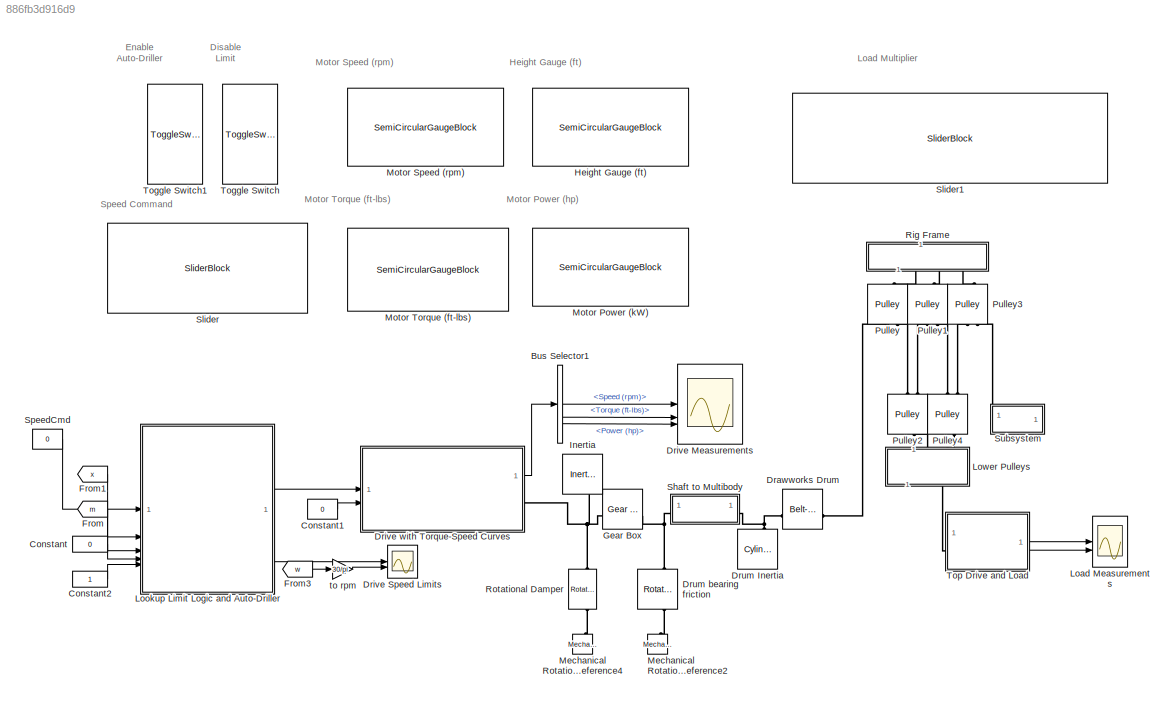
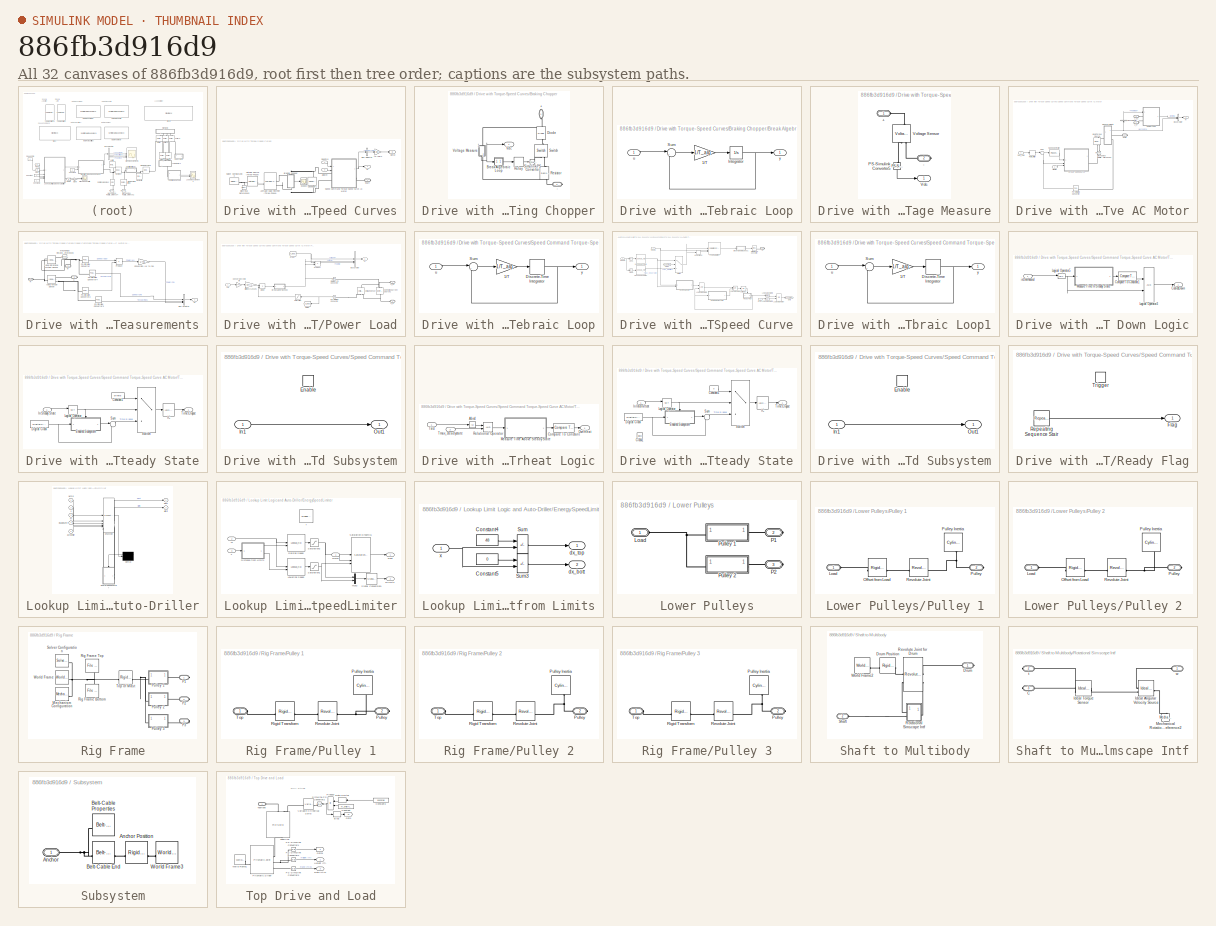
[diagram: thumbnail index - all 32 canvases of the model, root first then tree order]
MODEL slx_886fb3d916d9
KIND model
CONFIG AbsTol = auto
CONFIG EnableMultiTasking = off
CONFIG FixedStep = auto
CONFIG InitFcn = Ts = 10e-4;        % SPS/Overall Simulation time step\nTssc = 10*Ts;       % Simscape simulation time step\n\nG = 10;\nRdrum = 0.25;\nNp = 5;\nm_topdrive = 1000;\nm_drillstring = 22500;\nRpulley = Rdrum;\n\nm = m_topdrive + m_drillstring;\n\n% Top/Bottom Distance\nxtop = 48*0.3048;\nxbott = 0;\n\n% Maximum Torque/Power of Drive\nTmax = 8000*1.36;\nPmax = 1500*746;\n\n% Initial Conditions\nv0 = 0; %m/s\nx0 = 0; %m\n\n% Gr...<+14ch>
CONFIG MaxStep = auto
CONFIG MinStep = auto
CONFIG PreLoadFcn = addpath('CAD_Files');\nwarning('off','sm:sli:setup:compile:LocalSolverNotSupported');\n\nloadScale = 3;\nload limitsLookup.mat;
CONFIG RelTol = 1e-3
CONFIG SampleTimeConstraint = Unconstrained
CONFIG SolverName = ode3
CONFIG StartTime = 0.0
CONFIG StopTime = inf
BLOCK [BusSelector] Bus Selector1
  OutputSignals = Mechanical.Speed (rpm),Mechanical.Torque (ft-lbs),Mechanical.Power (hp)
BLOCK [Constant] Constant
  OutDataTypeStr = boolean
  Value = 0
BLOCK [Constant] Constant1
  Value = 0
BLOCK [Constant] Constant2
  OutDataTypeStr = boolean
BLOCK [Reference] Drawworks Drum  REF=sm_lib/Belts and Cables/Belt-Cable Spool
  NameLocation = top
  SourceBlock = sm_lib/Belts and Cables/Belt-Cable Spool
  SourceType = Belt-Cable Spool
BLOCK [Scope] Drive Measurements
  ActiveDisplayYMaximum = 1746.38902
  ActiveDisplayYMinimum = -1729.01675
  DataLoggingDecimateData = on
  DataLoggingDecimation = 1
  DataLoggingSaveFormat = Array
  DataLoggingVariableName = ScopeData1
  Floating = off
  GraphicalSettings = {"Style":{"BackgroundColor":[0.12941176470588237,0.12941176470588237,0.12941176470588237],"AxesColor":[0.07058823529411765,0.07058823529411765,0.07058823529411765],"LabelsColor":[0.8509803921568627,0.8509803921568627,0.8509803921568627],"PreserveColors":false,"Visible":[true,true,true],"LineStyle":["-","-","-"],"LineWidth":[1.5,1.5,1.5],"BarWidth":[0.9,0.9,0.9],"LineColor":["auto","auto","auto"],"...<+2790ch>
  LayoutDimensionsString = [3 1]
  MultipleDisplayCache = [{"MaxYLimMag":1746.38902,"MaxYLimReal":1746.38902,"MinYLimMag":0,"MinYLimReal":-1729.01675,"PlotAsMagnitudePhase":false,"ShowGrid":true,"ShowLegend":false,"Title":"%<SignalLabel>","YLabel":""},{"MaxYLimMag":10,"MaxYLimReal":7952.40464,"MinYLimMag":0,"MinYLimReal":3350.88334,"PlotAsMagnitudePhase":false,"ShowGrid":true,"ShowLegend":false,"Title":"%<SignalLabel>","YLabel":""},{"MaxYLimMag":10,"MaxY...<+163ch>
  NameLocation = top
  NumInputPorts = 3
  ScopeFrameLocation = window
  TimeSpan = 60
  Visible = on
  WasSavedAsWebScope = on
  WindowPosition = [108.000000,77.000000,579.000000,372.000000,]
BLOCK [Scope] Drive Speed Limits
  ActiveDisplayYMaximum = 1801.81435
  ActiveDisplayYMinimum = -1738.35433
  DataLoggingVariableName = ScopeData2
  Floating = off
  GraphicalSettings = {"GraphicalSettings":{"LegacySettings":true,"Style":{"AxesScalingProperties":{"ScaleAxesLimitsAtStop":false},"Style":{"AxesColor":"[0 0 0]","ChannelNames":["Raising Limit","Lowering Limit","Drive Speed (rpm)"],"ColorOrder":"[1 1 0.0666666666666667;0.0745098039215686 0.623529411764706 1;1 0.411764705882353 0.16078431372549;0.392156862745098 0.831372549019608 0.0745098039215686;0.717647058823529 0.2...<+585ch>
  MultipleDisplayCache = [{"MaxYLimMag":1801.81435,"MaxYLimReal":1801.81435,"MinYLimMag":0,"MinYLimReal":-1738.35433,"PlotAsMagnitudePhase":false,"ShowGrid":true,"ShowLegend":true,"Title":"%<SignalLabel>","YLabel":""}]
  NumInputPorts = 2
  ScopeFrameLocation = window
  ShowLegend = on
  TimeSpan = 60
  WasSavedAsWebScope = on
  WindowPosition = [112.000000,189.000000,576.000000,282.000000,]
BLOCK [SubSystem] Drive with Torque-Speed Curves
  NameLocation = top
BLOCK [Inport] Drive with Torque-Speed Curves/AllowInt
  Port = 2
BLOCK [Reference] Drive with Torque-Speed Curves/Average-Value Rectifier (Three-Phase)  REF=ee_lib/Semiconductors &
Converters/Converters/Average-Value
Rectifier
(Three-Phase)
  SourceBlock = ee_lib/Semiconductors &\nConverters/Converters/Average-Value\nRectifier\n(Three-Phase)
  SourceType = Average-Value\nRectifier\n(Three-Phase)
BLOCK [SubSystem] Drive with Torque-Speed Curves/Braking Chopper
  NameLocation = left
  PortSchema = {"entries":[{"content":{"sides":[{"content":{"connectorIds":["LConn1"]},"type":"ConnectorPlacement.EquallySpacedRectSide","uuid":"536ac03a-ce80-482e-856d-ba17d4591a46"},{"content":{"connectorIds":["RConn1"],"side":"RIGHT"},"type":"ConnectorPlacement.EquallySpacedRectSide","uuid":"f7c43d85-623d-4f88-8c97-5dbc911d5bb1"},{"content":{"side":"TOP"},"type":"ConnectorPlacement.EquallySpacedRectSide","uui...<+377ch>
BLOCK [PMIOPort] Drive with Torque-Speed Curves/Braking Chopper/+
  NameLocation = left
  Side = Left
BLOCK [PMIOPort] Drive with Torque-Speed Curves/Braking Chopper/-
  Port = 2
  Side = Right
BLOCK [SubSystem] Drive with Torque-Speed Curves/Braking Chopper/Break Algebraic Loop
BLOCK [Gain] Drive with Torque-Speed Curves/Braking Chopper/Break Algebraic Loop/1//T
  Gain = 1/T_alg
  NameLocation = top
BLOCK [Integrator] Drive with Torque-Speed Curves/Braking Chopper/Break Algebraic Loop/Integrator
BLOCK [Sum] Drive with Torque-Speed Curves/Braking Chopper/Break Algebraic Loop/Sum
  Inputs = |+-
BLOCK [Inport] Drive with Torque-Speed Curves/Braking Chopper/Break Algebraic Loop/u
BLOCK [Outport] Drive with Torque-Speed Curves/Braking Chopper/Break Algebraic Loop/y
  VectorParamsAs1DForOutWhenUnconnected = off
BLOCK [Reference] Drive with Torque-Speed Curves/Braking Chopper/Diode  REF=fl_lib/Electrical/Electrical Elements/Diode
  NameLocation = left
  SourceBlock = fl_lib/Electrical/Electrical Elements/Diode
  SourceType = Diode
BLOCK [Relay] Drive with Torque-Speed Curves/Braking Chopper/Relay
  OffSwitchValue = 1200
  OnSwitchValue = 1500
BLOCK [Reference] Drive with Torque-Speed Curves/Braking Chopper/Resistor  REF=fl_lib/Electrical/Electrical Elements/Resistor
  NameLocation = left
  SourceBlock = fl_lib/Electrical/Electrical Elements/Resistor
  SourceType = Resistor
BLOCK [Reference] Drive with Torque-Speed Curves/Braking Chopper/Simulink-PS Converter  REF=nesl_utility/Simulink-PS
Converter
  SourceBlock = nesl_utility/Simulink-PS\nConverter
  SourceType = Simulink-PS\nConverter
BLOCK [Reference] Drive with Torque-Speed Curves/Braking Chopper/Switch  REF=fl_lib/Electrical/Electrical Elements/Switch
  NameLocation = right
  SourceBlock = fl_lib/Electrical/Electrical Elements/Switch
  SourceType = Switch
BLOCK [Outport] Drive with Torque-Speed Curves/Braking Chopper/Vdc
BLOCK [SubSystem] Drive with Torque-Speed Curves/Braking Chopper/Voltage Measure
  NameLocation = left
BLOCK [PMIOPort] Drive with Torque-Speed Curves/Braking Chopper/Voltage Measure/+
  Side = Left
BLOCK [PMIOPort] Drive with Torque-Speed Curves/Braking Chopper/Voltage Measure/-
  Port = 2
  Side = Right
BLOCK [Reference] Drive with Torque-Speed Curves/Braking Chopper/Voltage Measure/PS-Simulink Converter5  REF=nesl_utility/PS-Simulink
Converter
  NameLocation = left
  SourceBlock = nesl_utility/PS-Simulink\nConverter
  SourceType = PS-Simulink\nConverter
BLOCK [Outport] Drive with Torque-Speed Curves/Braking Chopper/Voltage Measure/Vdc
  VectorParamsAs1DForOutWhenUnconnected = off
BLOCK [Reference] Drive with Torque-Speed Curves/Braking Chopper/Voltage Measure/Voltage Sensor  REF=fl_lib/Electrical/Electrical Sensors/Voltage Sensor
  NameLocation = right
  SourceBlock = fl_lib/Electrical/Electrical Sensors/Voltage Sensor
  SourceType = Voltage Sensor
BLOCK [BusSelector] Drive with Torque-Speed Curves/Bus Selector
  OutputSignals = Mechanical.Speed (rpm)
BLOCK [Reference] Drive with Torque-Speed Curves/Capacitor1  REF=fl_lib/Electrical/Electrical Elements/Capacitor
  NameLocation = left
  SourceBlock = fl_lib/Electrical/Electrical Elements/Capacitor
  SourceType = Capacitor
BLOCK [Reference] Drive with Torque-Speed Curves/Electrical Reference3  REF=fl_lib/Electrical/Electrical Elements/Electrical Reference
  NameLocation = right
  SourceBlock = fl_lib/Electrical/Electrical Elements/Electrical Reference
  SourceType = Electrical Reference
BLOCK [Goto] Drive with Torque-Speed Curves/Goto2
  GotoTag = w
  TagVisibility = global
BLOCK [Scope] Drive with Torque-Speed Curves/Scope2
  ActiveDisplayYMaximum = 1000.009544566614
  ActiveDisplayYMinimum = 999.99854226157458
  DataLoggingVariableName = ScopeData1
  Floating = off
  GraphicalSettings = {"Style":{"BackgroundColor":[0.12941176470588237,0.12941176470588237,0.12941176470588237],"AxesColor":[0.07058823529411765,0.07058823529411765,0.07058823529411765],"LabelsColor":[0.8509803921568627,0.8509803921568627,0.8509803921568627],"PreserveColors":false,"Visible":[true],"LineStyle":["-"],"LineWidth":[1.5],"BarWidth":[0.9],"LineColor":["auto"],"LineFaceAlpha":[1],"LineEdgeAlpha":[1],"Marker":...<+2014ch>
  MultipleDisplayCache = [{"MaxYLimMag":1000.009544566614,"MaxYLimReal":1000.009544566614,"MinYLimMag":999.99854226157458,"MinYLimReal":999.99854226157458,"PlotAsMagnitudePhase":false,"ShowGrid":true,"ShowLegend":false,"Title":"%<SignalLabel>","YLabel":""}]
  NameLocation = top
  NumInputPorts = 1
  ScopeFrameLocation = window
  TimeSpan = 60
  WasSavedAsWebScope = on
  WindowPosition = [712.000000,1288.000000,672.000000,302.000000,]
BLOCK [PMIOPort] Drive with Torque-Speed Curves/Shaft
  Side = Right
BLOCK [Reference] Drive with Torque-Speed Curves/Solver Configuration  REF=nesl_utility/Solver
Configuration
  SourceBlock = nesl_utility/Solver\nConfiguration
  SourceType = Solver\nConfiguration
BLOCK [Inport] Drive with Torque-Speed Curves/SpdCmd
BLOCK [SubSystem] Drive with Torque-Speed Curves/Speed Command Torque-Speed Curve AC Motor
BLOCK [Inport] Drive with Torque-Speed Curves/Speed Command Torque-Speed Curve AC Motor/AllowInt
  Port = 2
BLOCK [BusCreator] Drive with Torque-Speed Curves/Speed Command Torque-Speed Curve AC Motor/Bus Creator
  DisplayOption = bar
  InheritFromInputs = on
  Inputs = 2
BLOCK [BusSelector] Drive with Torque-Speed Curves/Speed Command Torque-Speed Curve AC Motor/Bus Selector
  NameLocation = right
  OutputSignals = Power (hp)
BLOCK [Reference] Drive with Torque-Speed Curves/Speed Command Torque-Speed Curve AC Motor/Ideal Torque Source  REF=fl_lib/Mechanical/Mechanical Sources/Ideal Torque Source
  NameLocation = right
  SourceBlock = fl_lib/Mechanical/Mechanical Sources/Ideal Torque Source
  SourceType = Ideal Torque Source
BLOCK [SubSystem] Drive with Torque-Speed Curves/Speed Command Torque-Speed Curve AC Motor/Measurements
BLOCK [BusCreator] Drive with Torque-Speed Curves/Speed Command Torque-Speed Curve AC Motor/Measurements/Bus Creator
  DisplayOption = bar
  InheritFromInputs = on
  Inputs = 3
BLOCK [PMIOPort] Drive with Torque-Speed Curves/Speed Command Torque-Speed Curve AC Motor/Measurements/C
  Side = Right
BLOCK [Gain] Drive with Torque-Speed Curves/Speed Command Torque-Speed Curve AC Motor/Measurements/Conversion (W to hp)
  Gain = 1/746
BLOCK [Reference] Drive with Torque-Speed Curves/Speed Command Torque-Speed Curve AC Motor/Measurements/Ideal Rotational Motion Sensor  REF=fl_lib/Mechanical/Mechanical Sensors/Ideal Rotational
Motion Sensor
  SourceBlock = fl_lib/Mechanical/Mechanical Sensors/Ideal Rotational\nMotion Sensor
  SourceType = Ideal Rotational\nMotion Sensor
BLOCK [Reference] Drive with Torque-Speed Curves/Speed Command Torque-Speed Curve AC Motor/Measurements/Ideal Torque Sensor  REF=fl_lib/Mechanical/Mechanical Sensors/Ideal Torque Sensor
  SourceBlock = fl_lib/Mechanical/Mechanical Sensors/Ideal Torque Sensor
  SourceType = Ideal Torque Sensor
BLOCK [Reference] Drive with Torque-Speed Curves/Speed Command Torque-Speed Curve AC Motor/Measurements/Mechanical Rotational Reference3  REF=fl_lib/Mechanical/Rotational Elements/Mechanical
Rotational Reference
  NameLocation = top
  SourceBlock = fl_lib/Mechanical/Rotational Elements/Mechanical\nRotational Reference
  SourceType = Mechanical\nRotational Reference
BLOCK [Reference] Drive with Torque-Speed Curves/Speed Command Torque-Speed Curve AC Motor/Measurements/PS-Simulink Converter  REF=nesl_utility/PS-Simulink
Converter
  SourceBlock = nesl_utility/PS-Simulink\nConverter
  SourceType = PS-Simulink\nConverter
BLOCK [Reference] Drive with Torque-Speed Curves/Speed Command Torque-Speed Curve AC Motor/Measurements/PS-Simulink Converter2  REF=nesl_utility/PS-Simulink
Converter
  SourceBlock = nesl_utility/PS-Simulink\nConverter
  SourceType = PS-Simulink\nConverter
BLOCK [Reference] Drive with Torque-Speed Curves/Speed Command Torque-Speed Curve AC Motor/Measurements/PS-Simulink Converter3  REF=nesl_utility/PS-Simulink
Converter
  SourceBlock = nesl_utility/PS-Simulink\nConverter
  SourceType = PS-Simulink\nConverter
BLOCK [Reference] Drive with Torque-Speed Curves/Speed Command Torque-Speed Curve AC Motor/Measurements/PS-Simulink Converter4  REF=nesl_utility/PS-Simulink
Converter
  SourceBlock = nesl_utility/PS-Simulink\nConverter
  SourceType = PS-Simulink\nConverter
BLOCK [Product] Drive with Torque-Speed Curves/Speed Command Torque-Speed Curve AC Motor/Measurements/Product
BLOCK [PMIOPort] Drive with Torque-Speed Curves/Speed Command Torque-Speed Curve AC Motor/Measurements/R
  Port = 2
  Side = Left
BLOCK [Outport] Drive with Torque-Speed Curves/Speed Command Torque-Speed Curve AC Motor/Measurements/m
  VectorParamsAs1DForOutWhenUnconnected = off
BLOCK [PMIOPort] Drive with Torque-Speed Curves/Speed Command Torque-Speed Curve AC Motor/Measurements/w
  Port = 3
  Side = Right
BLOCK [Reference] Drive with Torque-Speed Curves/Speed Command Torque-Speed Curve AC Motor/Mechanical Rotational Reference3  REF=fl_lib/Mechanical/Rotational Elements/Mechanical
Rotational Reference
  NameLocation = right
  SourceBlock = fl_lib/Mechanical/Rotational Elements/Mechanical\nRotational Reference
  SourceType = Mechanical\nRotational Reference
BLOCK [Reference] Drive with Torque-Speed Curves/Speed Command Torque-Speed Curve AC Motor/PS-Simulink Converter  REF=nesl_utility/PS-Simulink
Converter
  SourceBlock = nesl_utility/PS-Simulink\nConverter
  SourceType = PS-Simulink\nConverter
BLOCK [SubSystem] Drive with Torque-Speed Curves/Speed Command Torque-Speed Curve AC Motor/Power Load
  VariantControl = Variant
BLOCK [SubSystem] Drive with Torque-Speed Curves/Speed Command Torque-Speed Curve AC Motor/Power Load/Break Algebraic Loop
BLOCK [Gain] Drive with Torque-Speed Curves/Speed Command Torque-Speed Curve AC Motor/Power Load/Break Algebraic Loop/1//T
  Gain = 1/T_alg
  NameLocation = top
BLOCK [DiscreteIntegrator] Drive with Torque-Speed Curves/Speed Command Torque-Speed Curve AC Motor/Power Load/Break Algebraic Loop/Discrete-Time Integrator
  ICPrevOutput = DiscIntNeverNeededParam
  ICPrevScaledInput = DiscIntNeverNeededParam
  InitialConditionSetting = Auto
  SampleTime = -1
BLOCK [Sum] Drive with Torque-Speed Curves/Speed Command Torque-Speed Curve AC Motor/Power Load/Break Algebraic Loop/Sum
  Inputs = |+-
BLOCK [Inport] Drive with Torque-Speed Curves/Speed Command Torque-Speed Curve AC Motor/Power Load/Break Algebraic Loop/u
BLOCK [Outport] Drive with Torque-Speed Curves/Speed Command Torque-Speed Curve AC Motor/Power Load/Break Algebraic Loop/y
  VectorParamsAs1DForOutWhenUnconnected = off
BLOCK [BusCreator] Drive with Torque-Speed Curves/Speed Command Torque-Speed Curve AC Motor/Power Load/Bus Creator
  DisplayOption = bar
  InheritFromInputs = on
  Inputs = 3
BLOCK [Reference] Drive with Torque-Speed Curves/Speed Command Torque-Speed Curve AC Motor/Power Load/Controlled Current Source1  REF=fl_lib/Electrical/Electrical Sources/Controlled Current
Source
  NameLocation = left
  SourceBlock = fl_lib/Electrical/Electrical Sources/Controlled Current\nSource
  SourceType = Controlled Current\nSource
BLOCK [Gain] Drive with Torque-Speed Curves/Speed Command Torque-Speed Curve AC Motor/Power Load/Conversion (hp to W)
  Gain = 746
BLOCK [Product] Drive with Torque-Speed Curves/Speed Command Torque-Speed Curve AC Motor/Power Load/Divide
  Inputs = */
BLOCK [Gain] Drive with Torque-Speed Curves/Speed Command Torque-Speed Curve AC Motor/Power Load/Efficiency Losses
  Gain = 2-Eff/100
  NameLocation = top
BLOCK [From] Drive with Torque-Speed Curves/Speed Command Torque-Speed Curve AC Motor/Power Load/From
  GotoTag = V_load
  NameLocation = top
BLOCK [Goto] Drive with Torque-Speed Curves/Speed Command Torque-Speed Curve AC Motor/Power Load/Goto5
  GotoTag = V_load
  NameLocation = top
BLOCK [Reference] Drive with Torque-Speed Curves/Speed Command Torque-Speed Curve AC Motor/Power Load/PS-Simulink Converter  REF=nesl_utility/PS-Simulink
Converter
  NameLocation = top
  SourceBlock = nesl_utility/PS-Simulink\nConverter
  SourceType = PS-Simulink\nConverter
BLOCK [Product] Drive with Torque-Speed Curves/Speed Command Torque-Speed Curve AC Motor/Power Load/Product
BLOCK [Inport] Drive with Torque-Speed Curves/Speed Command Torque-Speed Curve AC Motor/Power Load/Pwr
BLOCK [Saturate] Drive with Torque-Speed Curves/Speed Command Torque-Speed Curve AC Motor/Power Load/Saturation
  LowerLimit = 1e-3
  NameLocation = top
  UpperLimit = inf
BLOCK [Reference] Drive with Torque-Speed Curves/Speed Command Torque-Speed Curve AC Motor/Power Load/Simulink-PS Converter  REF=nesl_utility/Simulink-PS
Converter
  SourceBlock = nesl_utility/Simulink-PS\nConverter
  SourceType = Simulink-PS\nConverter
BLOCK [PMIOPort] Drive with Torque-Speed Curves/Speed Command Torque-Speed Curve AC Motor/Power Load/V_P+
  Side = Left
BLOCK [PMIOPort] Drive with Torque-Speed Curves/Speed Command Torque-Speed Curve AC Motor/Power Load/V_P-
  Port = 2
  Side = Left
BLOCK [Reference] Drive with Torque-Speed Curves/Speed Command Torque-Speed Curve AC Motor/Power Load/Voltage Sensor  REF=fl_lib/Electrical/Electrical Sensors/Voltage Sensor
  NameLocation = right
  SourceBlock = fl_lib/Electrical/Electrical Sensors/Voltage Sensor
  SourceType = Voltage Sensor
BLOCK [Outport] Drive with Torque-Speed Curves/Speed Command Torque-Speed Curve AC Motor/Power Load/m
  VectorParamsAs1DForOutWhenUnconnected = off
BLOCK [RateLimiter] Drive with Torque-Speed Curves/Speed Command Torque-Speed Curve AC Motor/Rate Limiter
  FallingSlewLimit = -wrate
  RisingSlewLimit = wrate
  SampleTimeMode = inherited
BLOCK [PMIOPort] Drive with Torque-Speed Curves/Speed Command Torque-Speed Curve AC Motor/Shaft
  Side = Right
BLOCK [Inport] Drive with Torque-Speed Curves/Speed Command Torque-Speed Curve AC Motor/Spd_Cmd
BLOCK [Reference] Drive with Torque-Speed Curves/Speed Command Torque-Speed Curve AC Motor/Speed Controller  REF=slpidlib/PID Controller
  SourceBlock = slpidlib/PID Controller
  SourceType = PID 1dof
BLOCK [Sum] Drive with Torque-Speed Curves/Speed Command Torque-Speed Curve AC Motor/Sum
  Inputs = |+-
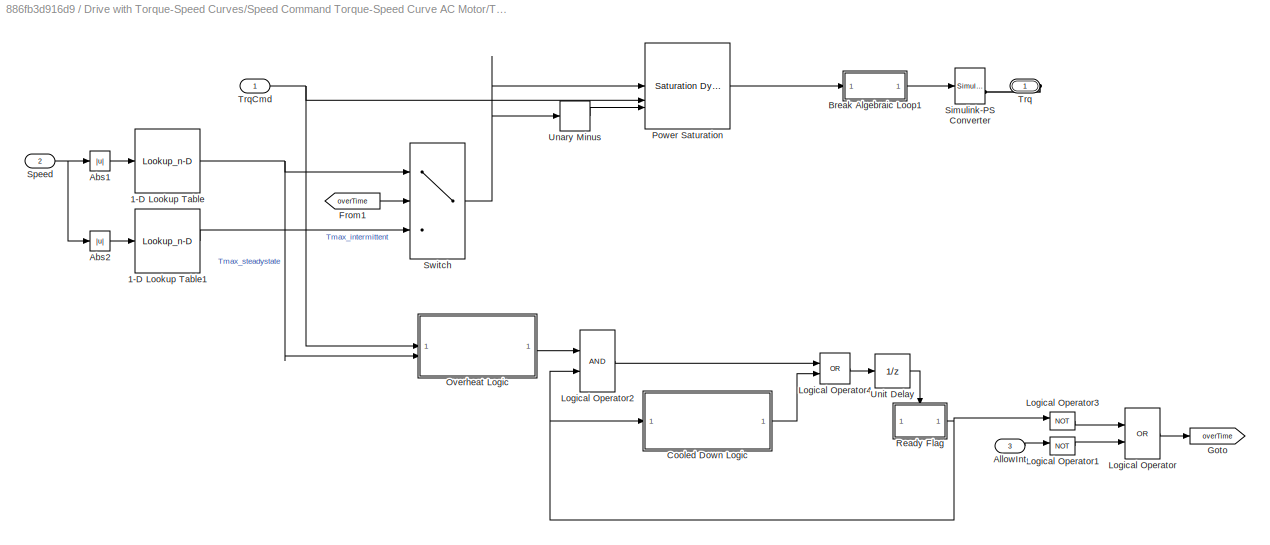
BLOCK [SubSystem] Drive with Torque-Speed Curves/Speed Command Torque-Speed Curve AC Motor/Torque-Speed Curve
BLOCK [Lookup_n-D] Drive with Torque-Speed Curves/Speed Command Torque-Speed Curve AC Motor/Torque-Speed Curve/1-D Lookup Table
  BreakpointsForDimension1 = contSpd
  InputPortMap = u0
  InternalRulePriority = Speed
  NumberOfTableDimensions = 1
  RndMeth = Simplest
  Table = contTrq
BLOCK [Lookup_n-D] Drive with Torque-Speed Curves/Speed Command Torque-Speed Curve AC Motor/Torque-Speed Curve/1-D Lookup Table1
  BreakpointsForDimension1 = intSpd
  InputPortMap = u0
  InternalRulePriority = Speed
  NumberOfTableDimensions = 1
  RndMeth = Simplest
  Table = intTrq
BLOCK [Abs] Drive with Torque-Speed Curves/Speed Command Torque-Speed Curve AC Motor/Torque-Speed Curve/Abs1
  SaturateOnIntegerOverflow = off
BLOCK [Abs] Drive with Torque-Speed Curves/Speed Command Torque-Speed Curve AC Motor/Torque-Speed Curve/Abs2
  SaturateOnIntegerOverflow = off
BLOCK [Inport] Drive with Torque-Speed Curves/Speed Command Torque-Speed Curve AC Motor/Torque-Speed Curve/AllowInt
  Port = 3
BLOCK [SubSystem] Drive with Torque-Speed Curves/Speed Command Torque-Speed Curve AC Motor/Torque-Speed Curve/Break Algebraic Loop1
BLOCK [Gain] Drive with Torque-Speed Curves/Speed Command Torque-Speed Curve AC Motor/Torque-Speed Curve/Break Algebraic Loop1/1//T
  Gain = 1/T_alg
  NameLocation = top
BLOCK [DiscreteIntegrator] Drive with Torque-Speed Curves/Speed Command Torque-Speed Curve AC Motor/Torque-Speed Curve/Break Algebraic Loop1/Discrete-Time Integrator
  ICPrevOutput = DiscIntNeverNeededParam
  ICPrevScaledInput = DiscIntNeverNeededParam
  InitialCondition = Rdrum/(G*(Np-1))*(m_topdrive+m_drillstring)*9.81*0.737562*loadScale
  InitialConditionSetting = Auto
  SampleTime = -1
BLOCK [Sum] Drive with Torque-Speed Curves/Speed Command Torque-Speed Curve AC Motor/Torque-Speed Curve/Break Algebraic Loop1/Sum
  Inputs = |+-
BLOCK [Inport] Drive with Torque-Speed Curves/Speed Command Torque-Speed Curve AC Motor/Torque-Speed Curve/Break Algebraic Loop1/u
BLOCK [Outport] Drive with Torque-Speed Curves/Speed Command Torque-Speed Curve AC Motor/Torque-Speed Curve/Break Algebraic Loop1/y
  VectorParamsAs1DForOutWhenUnconnected = off
BLOCK [SubSystem] Drive with Torque-Speed Curves/Speed Command Torque-Speed Curve AC Motor/Torque-Speed Curve/Cooled Down Logic
BLOCK [Reference] Drive with Torque-Speed Curves/Speed Command Torque-Speed Curve AC Motor/Torque-Speed Curve/Cooled Down Logic/Compare To Constant1  REF=simulink/Logic and Bit
Operations/Compare
To Constant
  SourceBlock = simulink/Logic and Bit\nOperations/Compare\nTo Constant
  SourceType = Compare To Constant
BLOCK [Outport] Drive with Torque-Speed Curves/Speed Command Torque-Speed Curve AC Motor/Torque-Speed Curve/Cooled Down Logic/CooledDown
  VectorParamsAs1DForOutWhenUnconnected = off
BLOCK [Logic] Drive with Torque-Speed Curves/Speed Command Torque-Speed Curve AC Motor/Torque-Speed Curve/Cooled Down Logic/Logical Operator3
  AllPortsSameDT = off
  OutDataTypeStr = boolean
BLOCK [Logic] Drive with Torque-Speed Curves/Speed Command Torque-Speed Curve AC Motor/Torque-Speed Curve/Cooled Down Logic/Logical Operator5
  AllPortsSameDT = off
  Operator = NOT
  OutDataTypeStr = boolean
BLOCK [SubSystem] Drive with Torque-Speed Curves/Speed Command Torque-Speed Curve AC Motor/Torque-Speed Curve/Cooled Down Logic/Measure Time In Steady State
BLOCK [Constant] Drive with Torque-Speed Curves/Speed Command Torque-Speed Curve AC Motor/Torque-Speed Curve/Cooled Down Logic/Measure Time In Steady State/Constant1
  Value = offTime
BLOCK [DigitalClock] Drive with Torque-Speed Curves/Speed Command Torque-Speed Curve AC Motor/Torque-Speed Curve/Cooled Down Logic/Measure Time In Steady State/Digital Clock
  SampleTime = Tssc
BLOCK [SubSystem] Drive with Torque-Speed Curves/Speed Command Torque-Speed Curve AC Motor/Torque-Speed Curve/Cooled Down Logic/Measure Time In Steady State/Enabled Subsystem
  TreatAsAtomicUnit = on
BLOCK [EnablePort] Drive with Torque-Speed Curves/Speed Command Torque-Speed Curve AC Motor/Torque-Speed Curve/Cooled Down Logic/Measure Time In Steady State/Enabled Subsystem/Enable
BLOCK [Inport] Drive with Torque-Speed Curves/Speed Command Torque-Speed Curve AC Motor/Torque-Speed Curve/Cooled Down Logic/Measure Time In Steady State/Enabled Subsystem/In1
BLOCK [Outport] Drive with Torque-Speed Curves/Speed Command Torque-Speed Curve AC Motor/Torque-Speed Curve/Cooled Down Logic/Measure Time In Steady State/Enabled Subsystem/Out1
  VectorParamsAs1DForOutWhenUnconnected = off
BLOCK [InitialCondition] Drive with Torque-Speed Curves/Speed Command Torque-Speed Curve AC Motor/Torque-Speed Curve/Cooled Down Logic/Measure Time In Steady State/IC
  Value = offTime
BLOCK [Inport] Drive with Torque-Speed Curves/Speed Command Torque-Speed Curve AC Motor/Torque-Speed Curve/Cooled Down Logic/Measure Time In Steady State/In Steady State
BLOCK [Logic] Drive with Torque-Speed Curves/Speed Command Torque-Speed Curve AC Motor/Torque-Speed Curve/Cooled Down Logic/Measure Time In Steady State/Logical Operator
  AllPortsSameDT = off
  Operator = NOT
  OutDataTypeStr = boolean
BLOCK [Sum] Drive with Torque-Speed Curves/Speed Command Torque-Speed Curve AC Motor/Torque-Speed Curve/Cooled Down Logic/Measure Time In Steady State/Sum
  Inputs = |-+
BLOCK [Switch] Drive with Torque-Speed Curves/Speed Command Torque-Speed Curve AC Motor/Torque-Speed Curve/Cooled Down Logic/Measure Time In Steady State/Switch
  Criteria = u2 ~= 0
  InputSameDT = off
  SaturateOnIntegerOverflow = off
BLOCK [Outport] Drive with Torque-Speed Curves/Speed Command Torque-Speed Curve AC Motor/Torque-Speed Curve/Cooled Down Logic/Measure Time In Steady State/Time Elapse
  VectorParamsAs1DForOutWhenUnconnected = off
BLOCK [Inport] Drive with Torque-Speed Curves/Speed Command Torque-Speed Curve AC Motor/Torque-Speed Curve/Cooled Down Logic/isOverheated
BLOCK [From] Drive with Torque-Speed Curves/Speed Command Torque-Speed Curve AC Motor/Torque-Speed Curve/From1
  GotoTag = overTime
BLOCK [Goto] Drive with Torque-Speed Curves/Speed Command Torque-Speed Curve AC Motor/Torque-Speed Curve/Goto
  GotoTag = overTime
BLOCK [Logic] Drive with Torque-Speed Curves/Speed Command Torque-Speed Curve AC Motor/Torque-Speed Curve/Logical Operator
  AllPortsSameDT = off
  Operator = OR
  OutDataTypeStr = boolean
BLOCK [Logic] Drive with Torque-Speed Curves/Speed Command Torque-Speed Curve AC Motor/Torque-Speed Curve/Logical Operator1
  AllPortsSameDT = off
  Operator = NOT
  OutDataTypeStr = boolean
BLOCK [Logic] Drive with Torque-Speed Curves/Speed Command Torque-Speed Curve AC Motor/Torque-Speed Curve/Logical Operator2
  AllPortsSameDT = off
  OutDataTypeStr = boolean
BLOCK [Logic] Drive with Torque-Speed Curves/Speed Command Torque-Speed Curve AC Motor/Torque-Speed Curve/Logical Operator3
  AllPortsSameDT = off
  Operator = NOT
  OutDataTypeStr = boolean
BLOCK [Logic] Drive with Torque-Speed Curves/Speed Command Torque-Speed Curve AC Motor/Torque-Speed Curve/Logical Operator4
  AllPortsSameDT = off
  Operator = OR
  OutDataTypeStr = boolean
BLOCK [SubSystem] Drive with Torque-Speed Curves/Speed Command Torque-Speed Curve AC Motor/Torque-Speed Curve/Overheat Logic
BLOCK [Abs] Drive with Torque-Speed Curves/Speed Command Torque-Speed Curve AC Motor/Torque-Speed Curve/Overheat Logic/Abs4
  SaturateOnIntegerOverflow = off
BLOCK [Reference] Drive with Torque-Speed Curves/Speed Command Torque-Speed Curve AC Motor/Torque-Speed Curve/Overheat Logic/Compare To Constant  REF=simulink/Logic and Bit
Operations/Compare
To Constant
  SourceBlock = simulink/Logic and Bit\nOperations/Compare\nTo Constant
  SourceType = Compare To Constant
BLOCK [SubSystem] Drive with Torque-Speed Curves/Speed Command Torque-Speed Curve AC Motor/Torque-Speed Curve/Overheat Logic/Measure Time Above Steady State
BLOCK [Clock] Drive with Torque-Speed Curves/Speed Command Torque-Speed Curve AC Motor/Torque-Speed Curve/Overheat Logic/Measure Time Above Steady State/Clock1
  Commented = on
BLOCK [Constant] Drive with Torque-Speed Curves/Speed Command Torque-Speed Curve AC Motor/Torque-Speed Curve/Overheat Logic/Measure Time Above Steady State/Constant1
  Value = 0
BLOCK [DigitalClock] Drive with Torque-Speed Curves/Speed Command Torque-Speed Curve AC Motor/Torque-Speed Curve/Overheat Logic/Measure Time Above Steady State/Digital Clock
  SampleTime = Tssc
BLOCK [SubSystem] Drive with Torque-Speed Curves/Speed Command Torque-Speed Curve AC Motor/Torque-Speed Curve/Overheat Logic/Measure Time Above Steady State/Enabled Subsystem
  TreatAsAtomicUnit = on
BLOCK [EnablePort] Drive with Torque-Speed Curves/Speed Command Torque-Speed Curve AC Motor/Torque-Speed Curve/Overheat Logic/Measure Time Above Steady State/Enabled Subsystem/Enable
BLOCK [Inport] Drive with Torque-Speed Curves/Speed Command Torque-Speed Curve AC Motor/Torque-Speed Curve/Overheat Logic/Measure Time Above Steady State/Enabled Subsystem/In1
BLOCK [Outport] Drive with Torque-Speed Curves/Speed Command Torque-Speed Curve AC Motor/Torque-Speed Curve/Overheat Logic/Measure Time Above Steady State/Enabled Subsystem/Out1
  VectorParamsAs1DForOutWhenUnconnected = off
BLOCK [InitialCondition] Drive with Torque-Speed Curves/Speed Command Torque-Speed Curve AC Motor/Torque-Speed Curve/Overheat Logic/Measure Time Above Steady State/IC
  Value = 0
BLOCK [Inport] Drive with Torque-Speed Curves/Speed Command Torque-Speed Curve AC Motor/Torque-Speed Curve/Overheat Logic/Measure Time Above Steady State/In Intermittent
BLOCK [Logic] Drive with Torque-Speed Curves/Speed Command Torque-Speed Curve AC Motor/Torque-Speed Curve/Overheat Logic/Measure Time Above Steady State/Logical Operator
  AllPortsSameDT = off
  Operator = NOT
  OutDataTypeStr = boolean
BLOCK [Sum] Drive with Torque-Speed Curves/Speed Command Torque-Speed Curve AC Motor/Torque-Speed Curve/Overheat Logic/Measure Time Above Steady State/Sum
  Inputs = |-+
BLOCK [Switch] Drive with Torque-Speed Curves/Speed Command Torque-Speed Curve AC Motor/Torque-Speed Curve/Overheat Logic/Measure Time Above Steady State/Switch
  Criteria = u2 ~= 0
  InputSameDT = off
  SaturateOnIntegerOverflow = off
BLOCK [Outport] Drive with Torque-Speed Curves/Speed Command Torque-Speed Curve AC Motor/Torque-Speed Curve/Overheat Logic/Measure Time Above Steady State/Time Elapse
  VectorParamsAs1DForOutWhenUnconnected = off
BLOCK [Outport] Drive with Torque-Speed Curves/Speed Command Torque-Speed Curve AC Motor/Torque-Speed Curve/Overheat Logic/Overheat
  VectorParamsAs1DForOutWhenUnconnected = off
BLOCK [RelationalOperator] Drive with Torque-Speed Curves/Speed Command Torque-Speed Curve AC Motor/Torque-Speed Curve/Overheat Logic/Relational Operator
  InputSameDT = off
  OutDataTypeStr = boolean
  RndMeth = Simplest
BLOCK [Inport] Drive with Torque-Speed Curves/Speed Command Torque-Speed Curve AC Motor/Torque-Speed Curve/Overheat Logic/Tact
BLOCK [Inport] Drive with Torque-Speed Curves/Speed Command Torque-Speed Curve AC Motor/Torque-Speed Curve/Overheat Logic/Tmax_steadystate
  Port = 2
BLOCK [Reference] Drive with Torque-Speed Curves/Speed Command Torque-Speed Curve AC Motor/Torque-Speed Curve/Power Saturation  REF=simulink/Discontinuities/Saturation
Dynamic
  SourceBlock = simulink/Discontinuities/Saturation\nDynamic
  SourceType = Saturation Dynamic
BLOCK [SubSystem] Drive with Torque-Speed Curves/Speed Command Torque-Speed Curve AC Motor/Torque-Speed Curve/Ready Flag
  TreatAsAtomicUnit = on
BLOCK [Outport] Drive with Torque-Speed Curves/Speed Command Torque-Speed Curve AC Motor/Torque-Speed Curve/Ready Flag/Flag
  InitialOutput = 1
  VectorParamsAs1DForOutWhenUnconnected = off
BLOCK [Reference] Drive with Torque-Speed Curves/Speed Command Torque-Speed Curve AC Motor/Torque-Speed Curve/Ready Flag/Repeating Sequence Stair  REF=simulink/Sources/Repeating
Sequence
Stair
  SourceBlock = simulink/Sources/Repeating\nSequence\nStair
  SourceType = Repeating Sequence Stair
BLOCK [TriggerPort] Drive with Torque-Speed Curves/Speed Command Torque-Speed Curve AC Motor/Torque-Speed Curve/Ready Flag/Trigger
  StatesWhenEnabling = held
  VariantControl = Variant
BLOCK [Reference] Drive with Torque-Speed Curves/Speed Command Torque-Speed Curve AC Motor/Torque-Speed Curve/Simulink-PS Converter  REF=nesl_utility/Simulink-PS
Converter
  SourceBlock = nesl_utility/Simulink-PS\nConverter
  SourceType = Simulink-PS\nConverter
BLOCK [Inport] Drive with Torque-Speed Curves/Speed Command Torque-Speed Curve AC Motor/Torque-Speed Curve/Speed
  Port = 2
BLOCK [Switch] Drive with Torque-Speed Curves/Speed Command Torque-Speed Curve AC Motor/Torque-Speed Curve/Switch
  Criteria = u2 > Threshold
  InputSameDT = off
  SaturateOnIntegerOverflow = off
BLOCK [PMIOPort] Drive with Torque-Speed Curves/Speed Command Torque-Speed Curve AC Motor/Torque-Speed Curve/Trq
  Side = Right
BLOCK [Inport] Drive with Torque-Speed Curves/Speed Command Torque-Speed Curve AC Motor/Torque-Speed Curve/TrqCmd
BLOCK [UnaryMinus] Drive with Torque-Speed Curves/Speed Command Torque-Speed Curve AC Motor/Torque-Speed Curve/Unary Minus
BLOCK [UnitDelay] Drive with Torque-Speed Curves/Speed Command Torque-Speed Curve AC Motor/Torque-Speed Curve/Unit Delay
  HasFrameUpgradeWarning = on
  SampleTime = Tssc
BLOCK [PMIOPort] Drive with Torque-Speed Curves/Speed Command Torque-Speed Curve AC Motor/V_P+
  NameLocation = top
  Port = 2
  Side = Left
BLOCK [PMIOPort] Drive with Torque-Speed Curves/Speed Command Torque-Speed Curve AC Motor/V_P-
  NameLocation = top
  Port = 3
  Side = Left
BLOCK [Outport] Drive with Torque-Speed Curves/Speed Command Torque-Speed Curve AC Motor/m
  NameLocation = top
  VectorParamsAs1DForOutWhenUnconnected = off
BLOCK [Reference] Drive with Torque-Speed Curves/Voltage Source (Three-Phase)  REF=ee_lib/Sources/Voltage
Source
(Three-Phase)
  SourceBlock = ee_lib/Sources/Voltage\nSource\n(Three-Phase)
  SourceType = Voltage\nSource\n(Three-Phase)
BLOCK [Outport] Drive with Torque-Speed Curves/m
  VectorParamsAs1DForOutWhenUnconnected = off
BLOCK [Gain] Drive with Torque-Speed Curves/to rad//s
  Gain = pi/30
BLOCK [Reference] Drum Inertia  REF=sm_lib/Body Elements/Cylindrical Solid
  NameLocation = left
  SourceBlock = sm_lib/Body Elements/Cylindrical Solid
  SourceType = Cylindrical Solid
BLOCK [Reference] Drum bearing friction  REF=fl_lib/Mechanical/Rotational Elements/Rotational Friction
  NameLocation = right
  SourceBlock = fl_lib/Mechanical/Rotational Elements/Rotational Friction
  SourceType = Rotational Friction
BLOCK [From] From
  GotoTag = m
  TagVisibility = global
BLOCK [From] From1
  GotoTag = x
  TagVisibility = global
BLOCK [From] From3
  GotoTag = w
  TagVisibility = global
BLOCK [Reference] Gear Box  REF=fl_lib/Mechanical/Mechanisms/Gear Box
  SourceBlock = fl_lib/Mechanical/Mechanisms/Gear Box
  SourceType = Gear Box
BLOCK [SemiCircularGaugeBlock] Height Gauge (ft)
  LabelPosition = Hide
  ScaleMax = 50
  TickInterval = 10
BLOCK [Reference] Inertia  REF=fl_lib/Mechanical/Rotational Elements/Inertia
  NameLocation = right
  SourceBlock = fl_lib/Mechanical/Rotational Elements/Inertia
  SourceType = Inertia
BLOCK [Scope] Load Measurements
  ActiveDisplayYMaximum = 48.40869
  ActiveDisplayYMinimum = 46.73475
  DataLoggingVariableName = ScopeData2
  Floating = off
  GraphicalSettings = {"GraphicalSettings":{"LegacySettings":true,"Style":{"AxesScalingProperties":{"ScaleAxesLimitsAtStop":false},"Style":{"AxesColor":"[0 0 0]","ChannelNames":["",""],"ColorOrder":"[1 1 0.0666666666666667;0.0745098039215686 0.623529411764706 1;1 0.411764705882353 0.16078431372549;0.392156862745098 0.831372549019608 0.0745098039215686;0.717647058823529 0.274509803921569 1;0.0588235294117647 1 1;1 0.074...<+482ch>
  LayoutDimensionsString = [2 1]
  MultipleDisplayCache = [{"MaxYLimMag":48.40869,"MaxYLimReal":48.40869,"MinYLimMag":46.73475,"MinYLimReal":46.73475,"PlotAsMagnitudePhase":false,"ShowGrid":true,"ShowLegend":false,"Title":"%<SignalLabel>","YLabel":""},{"MaxYLimMag":28.23676,"MaxYLimReal":2.73901,"MinYLimMag":0,"MinYLimReal":-2.72641,"PlotAsMagnitudePhase":false,"ShowGrid":true,"ShowLegend":false,"Title":"%<SignalLabel>","YLabel":""}]
  NumInputPorts = 2
  SampleTime = Tssc
  WasSavedAsWebScope = on
  WindowPosition = [693 205 560 357]
BLOCK [SubSystem] Lookup Limit Logic and Auto-Driller
  ErrorFcn = Stateflow.Translate.translate
  PermitHierarchicalResolution = ExplicitOnly
  SFBlockType = Chart
  SystemSampleTime = Tssc
  TreatAsAtomicUnit = on
BLOCK [Demux] Lookup Limit Logic and Auto-Driller/ Demux 
  Outputs = 1
BLOCK [S-Function] Lookup Limit Logic and Auto-Driller/ SFunction 
  EnableBusSupport = off
  FunctionName = sf_sfun
  PortCounts = [7 6]
  SFcnIsStateOwnerBlock = off
  SFunctionDeploymentMode = off
  Tag = Stateflow S-Function 1
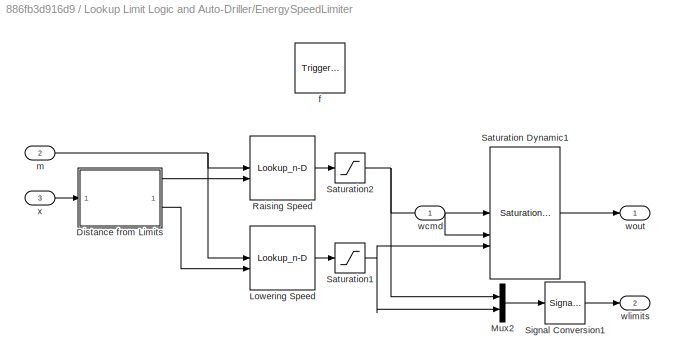
BLOCK [SubSystem] Lookup Limit Logic and Auto-Driller/EnergySpeedLimiter
  PreDeleteFcn = Stateflow.SLINSF.SimulinkMan.removePreDeleteFcn
  UndoDeleteFcn = Stateflow.SLINSF.SimulinkMan.restorePreDeleteFcn
BLOCK [SubSystem] Lookup Limit Logic and Auto-Driller/EnergySpeedLimiter/Distance from Limits
BLOCK [Constant] Lookup Limit Logic and Auto-Driller/EnergySpeedLimiter/Distance from Limits/Constant4
  Value = 48
BLOCK [Constant] Lookup Limit Logic and Auto-Driller/EnergySpeedLimiter/Distance from Limits/Constant5
  Value = 0
BLOCK [Sum] Lookup Limit Logic and Auto-Driller/EnergySpeedLimiter/Distance from Limits/Sum
  IconShape = rectangular
  Inputs = +-
BLOCK [Sum] Lookup Limit Logic and Auto-Driller/EnergySpeedLimiter/Distance from Limits/Sum3
  IconShape = rectangular
  Inputs = +-
BLOCK [Outport] Lookup Limit Logic and Auto-Driller/EnergySpeedLimiter/Distance from Limits/dx_bott
  Port = 2
  VectorParamsAs1DForOutWhenUnconnected = off
BLOCK [Outport] Lookup Limit Logic and Auto-Driller/EnergySpeedLimiter/Distance from Limits/dx_top
  VectorParamsAs1DForOutWhenUnconnected = off
BLOCK [Inport] Lookup Limit Logic and Auto-Driller/EnergySpeedLimiter/Distance from Limits/x
BLOCK [Lookup_n-D] Lookup Limit Logic and Auto-Driller/EnergySpeedLimiter/Lowering Speed
  BreakpointsForDimension1 = loadIn
  BreakpointsForDimension2 = distLowering
  InputPortMap = u0,u1
  InternalRulePriority = Speed
  RndMeth = Simplest
  Table = spdLowering
BLOCK [Mux] Lookup Limit Logic and Auto-Driller/EnergySpeedLimiter/Mux2
  DisplayOption = bar
  Inputs = 2
BLOCK [Lookup_n-D] Lookup Limit Logic and Auto-Driller/EnergySpeedLimiter/Raising Speed
  BreakpointsForDimension1 = loadIn
  BreakpointsForDimension2 = distRaising
  InputPortMap = u0,u1
  InternalRulePriority = Speed
  RndMeth = Simplest
  Table = spdRaising
BLOCK [Reference] Lookup Limit Logic and Auto-Driller/EnergySpeedLimiter/Saturation Dynamic1  REF=simulink/Discontinuities/Saturation
Dynamic
  SourceBlock = simulink/Discontinuities/Saturation\nDynamic
  SourceType = Saturation Dynamic
BLOCK [Saturate] Lookup Limit Logic and Auto-Driller/EnergySpeedLimiter/Saturation1
  LowerLimit = -inf
  UpperLimit = 0
BLOCK [Saturate] Lookup Limit Logic and Auto-Driller/EnergySpeedLimiter/Saturation2
  LowerLimit = 0
  UpperLimit = inf
BLOCK [SignalConversion] Lookup Limit Logic and Auto-Driller/EnergySpeedLimiter/Signal Conversion1
  OverrideOpt = off
BLOCK [TriggerPort] Lookup Limit Logic and Auto-Driller/EnergySpeedLimiter/f
  CopyFcn = Stateflow.SLINSF.SimulinkMan.removeBlockPreDeleteFcn
  PreDeleteFcn = Stateflow.SLINSF.SimulinkMan.unsafePredeleteFcn
  StatesWhenEnabling = held
  TriggerType = function-call
  VariantControl = (inherit)
BLOCK [Inport] Lookup Limit Logic and Auto-Driller/EnergySpeedLimiter/m
  OutDataTypeStr = double
  Port = 2
  PortDimensions = 1
  SignalType = real
  VarSizeSig = No
BLOCK [Inport] Lookup Limit Logic and Auto-Driller/EnergySpeedLimiter/wcmd
  OutDataTypeStr = double
  PortDimensions = 1
  SignalType = real
  VarSizeSig = No
BLOCK [Outport] Lookup Limit Logic and Auto-Driller/EnergySpeedLimiter/wlimits
  Port = 2
  VectorParamsAs1DForOutWhenUnconnected = off
BLOCK [Outport] Lookup Limit Logic and Auto-Driller/EnergySpeedLimiter/wout
  VectorParamsAs1DForOutWhenUnconnected = off
BLOCK [Inport] Lookup Limit Logic and Auto-Driller/EnergySpeedLimiter/x
  OutDataTypeStr = double
  Port = 3
  PortDimensions = 1
  SignalType = real
  VarSizeSig = No
BLOCK [Inport] Lookup Limit Logic and Auto-Driller/autoDriller
  Port = 5
BLOCK [Inport] Lookup Limit Logic and Auto-Driller/disableLimit
  Port = 4
BLOCK [Inport] Lookup Limit Logic and Auto-Driller/m
  Port = 3
BLOCK [Inport] Lookup Limit Logic and Auto-Driller/wcmd
BLOCK [Outport] Lookup Limit Logic and Auto-Driller/wlimit
  Port = 2
  VectorParamsAs1DForOutWhenUnconnected = off
BLOCK [Outport] Lookup Limit Logic and Auto-Driller/wout
  VectorParamsAs1DForOutWhenUnconnected = off
BLOCK [Inport] Lookup Limit Logic and Auto-Driller/x
  Port = 2
BLOCK [SubSystem] Lower Pulleys
  NameLocation = right
BLOCK [PMIOPort] Lower Pulleys/Load
  Side = Left
BLOCK [PMIOPort] Lower Pulleys/P1
  Port = 2
  Side = Right
BLOCK [PMIOPort] Lower Pulleys/P2
  Port = 3
  Side = Right
BLOCK [SubSystem] Lower Pulleys/Pulley 1
BLOCK [PMIOPort] Lower Pulleys/Pulley 1/Load
  Side = Left
BLOCK [Reference] Lower Pulleys/Pulley 1/Offset from Load  REF=sm_lib/Frames and
Transforms/Rigid
Transform
  NameLocation = top
  SourceBlock = sm_lib/Frames and\nTransforms/Rigid\nTransform
  SourceType = Rigid\nTransform
BLOCK [PMIOPort] Lower Pulleys/Pulley 1/Pulley
  NameLocation = top
  Port = 2
  Side = Right
BLOCK [Reference] Lower Pulleys/Pulley 1/Pulley Inertia  REF=sm_lib/Body Elements/Cylindrical Solid
  NameLocation = left
  SourceBlock = sm_lib/Body Elements/Cylindrical Solid
  SourceType = Cylindrical Solid
BLOCK [Reference] Lower Pulleys/Pulley 1/Revolute Joint  REF=sm_lib/Joints/Revolute Joint
  SourceBlock = sm_lib/Joints/Revolute Joint
  SourceType = Revolute Joint
BLOCK [SubSystem] Lower Pulleys/Pulley 2
BLOCK [PMIOPort] Lower Pulleys/Pulley 2/Load
  Side = Left
BLOCK [Reference] Lower Pulleys/Pulley 2/Offset from Load  REF=sm_lib/Frames and
Transforms/Rigid
Transform
  NameLocation = top
  SourceBlock = sm_lib/Frames and\nTransforms/Rigid\nTransform
  SourceType = Rigid\nTransform
BLOCK [PMIOPort] Lower Pulleys/Pulley 2/Pulley
  NameLocation = top
  Port = 2
  Side = Right
BLOCK [Reference] Lower Pulleys/Pulley 2/Pulley Inertia  REF=sm_lib/Body Elements/Cylindrical Solid
  NameLocation = left
  SourceBlock = sm_lib/Body Elements/Cylindrical Solid
  SourceType = Cylindrical Solid
BLOCK [Reference] Lower Pulleys/Pulley 2/Revolute Joint  REF=sm_lib/Joints/Revolute Joint
  SourceBlock = sm_lib/Joints/Revolute Joint
  SourceType = Revolute Joint
BLOCK [Reference] Mechanical Rotational Reference2  REF=fl_lib/Mechanical/Rotational Elements/Mechanical
Rotational Reference
  NameLocation = right
  SourceBlock = fl_lib/Mechanical/Rotational Elements/Mechanical\nRotational Reference
  SourceType = Mechanical\nRotational Reference
BLOCK [Reference] Mechanical Rotational Reference4  REF=fl_lib/Mechanical/Rotational Elements/Mechanical
Rotational Reference
  NameLocation = right
  SourceBlock = fl_lib/Mechanical/Rotational Elements/Mechanical\nRotational Reference
  SourceType = Mechanical\nRotational Reference
BLOCK [SemiCircularGaugeBlock] Motor Power (kW)
  ScaleMax = 2000
  ScaleMin = -2000
  TickInterval = 1000
BLOCK [SemiCircularGaugeBlock] Motor Speed (rpm)
  ScaleMax = 1500
  ScaleMin = -1500
  TickInterval = 500
BLOCK [SemiCircularGaugeBlock] Motor Torque (ft-lbs)
  ScaleMax = 15000
  ScaleMin = -15000
  TickInterval = 5000
BLOCK [Reference] Pulley  REF=sm_lib/Belts and Cables/Pulley
  NameLocation = left
  SourceBlock = sm_lib/Belts and Cables/Pulley
  SourceType = Pulley
BLOCK [Reference] Pulley1  REF=sm_lib/Belts and Cables/Pulley
  NameLocation = left
  SourceBlock = sm_lib/Belts and Cables/Pulley
  SourceType = Pulley
BLOCK [Reference] Pulley2  REF=sm_lib/Belts and Cables/Pulley
  NameLocation = right
  SourceBlock = sm_lib/Belts and Cables/Pulley
  SourceType = Pulley
BLOCK [Reference] Pulley3  REF=sm_lib/Belts and Cables/Pulley
  NameLocation = left
  SourceBlock = sm_lib/Belts and Cables/Pulley
  SourceType = Pulley
BLOCK [Reference] Pulley4  REF=sm_lib/Belts and Cables/Pulley
  NameLocation = right
  SourceBlock = sm_lib/Belts and Cables/Pulley
  SourceType = Pulley
BLOCK [SubSystem] Rig Frame
  NameLocation = right
BLOCK [Reference] Rig Frame/Mechanism Configuration  REF=sm_lib/Utilities/Mechanism
Configuration
  SourceBlock = sm_lib/Utilities/Mechanism\nConfiguration
  SourceType = Mechanism\nConfiguration
BLOCK [PMIOPort] Rig Frame/P1
  Side = Right
BLOCK [PMIOPort] Rig Frame/P2
  Port = 2
  Side = Right
BLOCK [PMIOPort] Rig Frame/P3
  Port = 3
  Side = Right
BLOCK [SubSystem] Rig Frame/Pulley 1
BLOCK [PMIOPort] Rig Frame/Pulley 1/Pulley
  NameLocation = top
  Port = 2
  Side = Right
BLOCK [Reference] Rig Frame/Pulley 1/Pulley Inertia  REF=sm_lib/Body Elements/Cylindrical Solid
  NameLocation = left
  SourceBlock = sm_lib/Body Elements/Cylindrical Solid
  SourceType = Cylindrical Solid
BLOCK [Reference] Rig Frame/Pulley 1/Revolute Joint  REF=sm_lib/Joints/Revolute Joint
  SourceBlock = sm_lib/Joints/Revolute Joint
  SourceType = Revolute Joint
BLOCK [Reference] Rig Frame/Pulley 1/Rigid Transform  REF=sm_lib/Frames and
Transforms/Rigid
Transform
  SourceBlock = sm_lib/Frames and\nTransforms/Rigid\nTransform
  SourceType = Rigid\nTransform
BLOCK [PMIOPort] Rig Frame/Pulley 1/Top
  Side = Left
BLOCK [SubSystem] Rig Frame/Pulley 2
BLOCK [PMIOPort] Rig Frame/Pulley 2/Pulley
  NameLocation = top
  Port = 2
  Side = Right
BLOCK [Reference] Rig Frame/Pulley 2/Pulley Inertia  REF=sm_lib/Body Elements/Cylindrical Solid
  NameLocation = left
  SourceBlock = sm_lib/Body Elements/Cylindrical Solid
  SourceType = Cylindrical Solid
BLOCK [Reference] Rig Frame/Pulley 2/Revolute Joint  REF=sm_lib/Joints/Revolute Joint
  SourceBlock = sm_lib/Joints/Revolute Joint
  SourceType = Revolute Joint
BLOCK [Reference] Rig Frame/Pulley 2/Rigid Transform  REF=sm_lib/Frames and
Transforms/Rigid
Transform
  SourceBlock = sm_lib/Frames and\nTransforms/Rigid\nTransform
  SourceType = Rigid\nTransform
BLOCK [PMIOPort] Rig Frame/Pulley 2/Top
  Side = Left
BLOCK [SubSystem] Rig Frame/Pulley 3
BLOCK [PMIOPort] Rig Frame/Pulley 3/Pulley
  NameLocation = top
  Port = 2
  Side = Right
BLOCK [Reference] Rig Frame/Pulley 3/Pulley Inertia  REF=sm_lib/Body Elements/Cylindrical Solid
  NameLocation = left
  SourceBlock = sm_lib/Body Elements/Cylindrical Solid
  SourceType = Cylindrical Solid
BLOCK [Reference] Rig Frame/Pulley 3/Revolute Joint  REF=sm_lib/Joints/Revolute Joint
  SourceBlock = sm_lib/Joints/Revolute Joint
  SourceType = Revolute Joint
BLOCK [Reference] Rig Frame/Pulley 3/Rigid Transform  REF=sm_lib/Frames and
Transforms/Rigid
Transform
  SourceBlock = sm_lib/Frames and\nTransforms/Rigid\nTransform
  SourceType = Rigid\nTransform
BLOCK [PMIOPort] Rig Frame/Pulley 3/Top
  Side = Left
BLOCK [Reference] Rig Frame/Rig Frame Bottom  REF=sm_lib/Body Elements/File Solid
  NameLocation = right
  SourceBlock = sm_lib/Body Elements/File Solid
  SourceType = File Solid
BLOCK [Reference] Rig Frame/Rig Frame Top  REF=sm_lib/Body Elements/File Solid
  NameLocation = right
  SourceBlock = sm_lib/Body Elements/File Solid
  SourceType = File Solid
BLOCK [Reference] Rig Frame/Solver Configuration   REF=nesl_utility/Solver
Configuration
  SourceBlock = nesl_utility/Solver\nConfiguration
  SourceType = Solver\nConfiguration
BLOCK [Reference] Rig Frame/Top of Mast  REF=sm_lib/Frames and
Transforms/Rigid
Transform
  NameLocation = top
  SourceBlock = sm_lib/Frames and\nTransforms/Rigid\nTransform
  SourceType = Rigid\nTransform
BLOCK [Reference] Rig Frame/World Frame  REF=sm_lib/Frames and
Transforms/World Frame
  SourceBlock = sm_lib/Frames and\nTransforms/World Frame
  SourceType = World Frame
BLOCK [Reference] Rotational Damper  REF=fl_lib/Mechanical/Rotational Elements/Rotational Damper
  NameLocation = right
  SourceBlock = fl_lib/Mechanical/Rotational Elements/Rotational Damper
  SourceType = Rotational Damper
BLOCK [SubSystem] Shaft to Multibody
  NameLocation = top
BLOCK [PMIOPort] Shaft to Multibody/Drum
  Side = Right
BLOCK [Reference] Shaft to Multibody/Drum Position  REF=sm_lib/Frames and
Transforms/Rigid
Transform
  NameLocation = top
  SourceBlock = sm_lib/Frames and\nTransforms/Rigid\nTransform
  SourceType = Rigid\nTransform
BLOCK [Reference] Shaft to Multibody/Revolute Joint for Drum  REF=sm_lib/Joints/Revolute Joint
  SourceBlock = sm_lib/Joints/Revolute Joint
  SourceType = Revolute Joint
BLOCK [SubSystem] Shaft to Multibody/Rotational Simscape Intf
BLOCK [PMIOPort] Shaft to Multibody/Rotational Simscape Intf/C
  Port = 3
  Side = Right
BLOCK [Reference] Shaft to Multibody/Rotational Simscape Intf/Ideal Angular Velocity Source  REF=fl_lib/Mechanical/Mechanical Sources/Ideal Angular
Velocity Source
  SourceBlock = fl_lib/Mechanical/Mechanical Sources/Ideal Angular\nVelocity Source
  SourceType = Ideal Angular\nVelocity Source
BLOCK [Reference] Shaft to Multibody/Rotational Simscape Intf/Ideal Torque Sensor  REF=fl_lib/Mechanical/Mechanical Sensors/Ideal Torque Sensor
  NameLocation = top
  SourceBlock = fl_lib/Mechanical/Mechanical Sensors/Ideal Torque Sensor
  SourceType = Ideal Torque Sensor
BLOCK [Reference] Shaft to Multibody/Rotational Simscape Intf/Mechanical Rotational Reference2  REF=fl_lib/Mechanical/Rotational Elements/Mechanical
Rotational Reference
  NameLocation = right
  SourceBlock = fl_lib/Mechanical/Rotational Elements/Mechanical\nRotational Reference
  SourceType = Mechanical\nRotational Reference
BLOCK [PMIOPort] Shaft to Multibody/Rotational Simscape Intf/t
  NameLocation = top
  Port = 2
  Side = Right
BLOCK [PMIOPort] Shaft to Multibody/Rotational Simscape Intf/w
  NameLocation = top
  Side = Left
BLOCK [PMIOPort] Shaft to Multibody/Shaft
  Port = 2
  Side = Left
BLOCK [Reference] Shaft to Multibody/World Frame2  REF=sm_lib/Frames and
Transforms/World Frame
  SourceBlock = sm_lib/Frames and\nTransforms/World Frame
  SourceType = World Frame
BLOCK [SliderBlock] Slider
  LabelPosition = Hide
  ScaleMax = 1500
  ScaleMin = -1500
BLOCK [SliderBlock] Slider1
  LabelPosition = Hide
  ScaleMax = 8
  TickInterval = 1
BLOCK [Constant] SpeedCmd
  OutDataTypeStr = double
  Value = 0
BLOCK [SubSystem] Subsystem
BLOCK [PMIOPort] Subsystem/Anchor
  Side = Left
BLOCK [Reference] Subsystem/Anchor Position  REF=sm_lib/Frames and
Transforms/Rigid
Transform
  NameLocation = top
  SourceBlock = sm_lib/Frames and\nTransforms/Rigid\nTransform
  SourceType = Rigid\nTransform
BLOCK [Reference] Subsystem/Belt-Cable End  REF=sm_lib/Belts and Cables/Belt-Cable End
  NameLocation = top
  SourceBlock = sm_lib/Belts and Cables/Belt-Cable End
  SourceType = Belt-Cable End
BLOCK [Reference] Subsystem/Belt-Cable Properties  REF=sm_lib/Belts and Cables/Belt-Cable
Properties
  SourceBlock = sm_lib/Belts and Cables/Belt-Cable\nProperties
  SourceType = Belt-Cable\nProperties
BLOCK [Reference] Subsystem/World Frame3  REF=sm_lib/Frames and
Transforms/World Frame
  SourceBlock = sm_lib/Frames and\nTransforms/World Frame
  SourceType = World Frame
BLOCK [ToggleSwitchBlock] Toggle Switch
  LabelPosition = Hide
BLOCK [ToggleSwitchBlock] Toggle Switch1
  LabelPosition = Hide
BLOCK [SubSystem] Top Drive and Load
BLOCK [Bias] Top Drive and Load/Bias
  Bias = m_topdrive
  SaturateOnIntegerOverflow = off
BLOCK [Constant] Top Drive and Load/Constant
  Value = m_drillstring
BLOCK [Constant] Top Drive and Load/Constant3
  Value = loadScale
BLOCK [Goto] Top Drive and Load/Goto
  GotoTag = m
  TagVisibility = global
BLOCK [Goto] Top Drive and Load/Goto1
  GotoTag = x
  TagVisibility = global
BLOCK [Outport] Top Drive and Load/Height (ft)
  VectorParamsAs1DForOutWhenUnconnected = off
BLOCK [Reference] Top Drive and Load/PS-Simulink Converter1  REF=nesl_utility/PS-Simulink
Converter
  SourceBlock = nesl_utility/PS-Simulink\nConverter
  SourceType = PS-Simulink\nConverter
BLOCK [Reference] Top Drive and Load/PS-Simulink Converter3  REF=nesl_utility/PS-Simulink
Converter
  SourceBlock = nesl_utility/PS-Simulink\nConverter
  SourceType = PS-Simulink\nConverter
BLOCK [Reference] Top Drive and Load/PS-Simulink Converter4  REF=nesl_utility/PS-Simulink
Converter
  SourceBlock = nesl_utility/PS-Simulink\nConverter
  SourceType = PS-Simulink\nConverter
BLOCK [Reference] Top Drive and Load/Prismatic Slider  REF=sm_lib/Joints/Prismatic
Joint
  SourceBlock = sm_lib/Joints/Prismatic\nJoint
  SourceType = Prismatic\nJoint
BLOCK [Product] Top Drive and Load/Product
BLOCK [Outport] Top Drive and Load/Rate (ft//s)
  Port = 2
  VectorParamsAs1DForOutWhenUnconnected = off
BLOCK [RateLimiter] Top Drive and Load/Rate Limiter
  FallingSlewLimit = -0.5
  InitialCondition = loadScale
  RisingSlewLimit = 0.5
  SampleTimeMode = inherited
BLOCK [Reference] Top Drive and Load/Simulink-PS Converter2  REF=nesl_utility/Simulink-PS
Converter
  SourceBlock = nesl_utility/Simulink-PS\nConverter
  SourceType = Simulink-PS\nConverter
BLOCK [Reference] Top Drive and Load/TopDrive  REF=sm_lib/Body Elements/File Solid
  NameLocation = left
  SourceBlock = sm_lib/Body Elements/File Solid
  SourceType = File Solid
BLOCK [PMIOPort] Top Drive and Load/TopHook
  Side = Left
BLOCK [Reference] Top Drive and Load/Variable Cylindrical Solid  REF=sm_lib/Body Elements/Variable Mass/Variable
Cylindrical Solid
  SourceBlock = sm_lib/Body Elements/Variable Mass/Variable\nCylindrical Solid
  SourceType = Variable\nCylindrical Solid
BLOCK [Reference] Top Drive and Load/World Frame1  REF=sm_lib/Frames and
Transforms/World Frame
  SourceBlock = sm_lib/Frames and\nTransforms/World Frame
  SourceType = World Frame
BLOCK [Gain] to rpm
  Gain = 30/pi
ANNOTATION (root): Motor Power (hp)
ANNOTATION (root): Disable Limit
ANNOTATION (root): Enable Auto-Driller
ANNOTATION (root): Height Gauge (ft)
ANNOTATION (root): Load Multiplier
ANNOTATION (root): Motor Speed (rpm)
ANNOTATION (root): Motor Torque (ft-lbs)
ANNOTATION (root): Speed Command
ANNOTATION Top Drive and Load: Drill String
LINE Bus Selector1:1 -> Drive Measurements:1
LINE Bus Selector1:2 -> Drive Measurements:2
LINE Bus Selector1:3 -> Drive Measurements:3
LINE Constant1:1 -> Drive with Torque-Speed Curves:2
LINE Constant2:1 -> Lookup Limit Logic and Auto-Driller:5
LINE Constant:1 -> Lookup Limit Logic and Auto-Driller:4
LINE Drive with Torque-Speed Curves/AllowInt:1 -> Drive with Torque-Speed Curves/Speed Command Torque-Speed Curve AC Motor:2
LINE Drive with Torque-Speed Curves/Braking Chopper/Break Algebraic Loop/1//T:1 -> Drive with Torque-Speed Curves/Braking Chopper/Break Algebraic Loop/Integrator:1
NET Drive with Torque-Speed Curves/Braking Chopper/Break Algebraic Loop/Integrator:1 -> Drive with Torque-Speed Curves/Braking Chopper/Break Algebraic Loop/Sum:2, Drive with Torque-Speed Curves/Braking Chopper/Break Algebraic Loop/y:1
LINE Drive with Torque-Speed Curves/Braking Chopper/Break Algebraic Loop/Sum:1 -> Drive with Torque-Speed Curves/Braking Chopper/Break Algebraic Loop/1//T:1
LINE Drive with Torque-Speed Curves/Braking Chopper/Break Algebraic Loop/u:1 -> Drive with Torque-Speed Curves/Braking Chopper/Break Algebraic Loop/Sum:1
LINE Drive with Torque-Speed Curves/Braking Chopper/Break Algebraic Loop:1 -> Drive with Torque-Speed Curves/Braking Chopper/Relay:1
LINE Drive with Torque-Speed Curves/Braking Chopper/Relay:1 -> Drive with Torque-Speed Curves/Braking Chopper/Simulink-PS Converter:1
LINE Drive with Torque-Speed Curves/Braking Chopper/Voltage Measure/PS-Simulink Converter5:1 -> Drive with Torque-Speed Curves/Braking Chopper/Voltage Measure/Vdc:1
NET Drive with Torque-Speed Curves/Braking Chopper/Voltage Measure:1 -> Drive with Torque-Speed Curves/Braking Chopper/Break Algebraic Loop:1, Drive with Torque-Speed Curves/Braking Chopper/Vdc:1
LINE Drive with Torque-Speed Curves/Braking Chopper:1 -> Drive with Torque-Speed Curves/Scope2:1
LINE Drive with Torque-Speed Curves/Bus Selector:1 -> Drive with Torque-Speed Curves/to rad//s:1
LINE Drive with Torque-Speed Curves/SpdCmd:1 -> Drive with Torque-Speed Curves/Speed Command Torque-Speed Curve AC Motor:1
LINE Drive with Torque-Speed Curves/Speed Command Torque-Speed Curve AC Motor/AllowInt:1 -> Drive with Torque-Speed Curves/Speed Command Torque-Speed Curve AC Motor/Torque-Speed Curve:3
LINE Drive with Torque-Speed Curves/Speed Command Torque-Speed Curve AC Motor/Bus Creator:1 -> Drive with Torque-Speed Curves/Speed Command Torque-Speed Curve AC Motor/m:1
LINE Drive with Torque-Speed Curves/Speed Command Torque-Speed Curve AC Motor/Bus Selector:1 -> Drive with Torque-Speed Curves/Speed Command Torque-Speed Curve AC Motor/Power Load:1
LINE Drive with Torque-Speed Curves/Speed Command Torque-Speed Curve AC Motor/Measurements/Bus Creator:1 -> Drive with Torque-Speed Curves/Speed Command Torque-Speed Curve AC Motor/Measurements/m:1
LINE Drive with Torque-Speed Curves/Speed Command Torque-Speed Curve AC Motor/Measurements/Conversion (W to hp):1 -> Drive with Torque-Speed Curves/Speed Command Torque-Speed Curve AC Motor/Measurements/Bus Creator:3
LINE Drive with Torque-Speed Curves/Speed Command Torque-Speed Curve AC Motor/Measurements/PS-Simulink Converter2:1 -> Drive with Torque-Speed Curves/Speed Command Torque-Speed Curve AC Motor/Measurements/Product:2
LINE Drive with Torque-Speed Curves/Speed Command Torque-Speed Curve AC Motor/Measurements/PS-Simulink Converter3:1 -> Drive with Torque-Speed Curves/Speed Command Torque-Speed Curve AC Motor/Measurements/Bus Creator:2
LINE Drive with Torque-Speed Curves/Speed Command Torque-Speed Curve AC Motor/Measurements/PS-Simulink Converter4:1 -> Drive with Torque-Speed Curves/Speed Command Torque-Speed Curve AC Motor/Measurements/Bus Creator:1
LINE Drive with Torque-Speed Curves/Speed Command Torque-Speed Curve AC Motor/Measurements/PS-Simulink Converter:1 -> Drive with Torque-Speed Curves/Speed Command Torque-Speed Curve AC Motor/Measurements/Product:1
LINE Drive with Torque-Speed Curves/Speed Command Torque-Speed Curve AC Motor/Measurements/Product:1 -> Drive with Torque-Speed Curves/Speed Command Torque-Speed Curve AC Motor/Measurements/Conversion (W to hp):1
NET Drive with Torque-Speed Curves/Speed Command Torque-Speed Curve AC Motor/Measurements:1 -> Drive with Torque-Speed Curves/Speed Command Torque-Speed Curve AC Motor/Bus Creator:2, Drive with Torque-Speed Curves/Speed Command Torque-Speed Curve AC Motor/Bus Selector:1
NET Drive with Torque-Speed Curves/Speed Command Torque-Speed Curve AC Motor/PS-Simulink Converter:1 -> Drive with Torque-Speed Curves/Speed Command Torque-Speed Curve AC Motor/Sum:2, Drive with Torque-Speed Curves/Speed Command Torque-Speed Curve AC Motor/Torque-Speed Curve:2
LINE Drive with Torque-Speed Curves/Speed Command Torque-Speed Curve AC Motor/Power Load/Break Algebraic Loop/1//T:1 -> Drive with Torque-Speed Curves/Speed Command Torque-Speed Curve AC Motor/Power Load/Break Algebraic Loop/Discrete-Time Integrator:1
NET Drive with Torque-Speed Curves/Speed Command Torque-Speed Curve AC Motor/Power Load/Break Algebraic Loop/Discrete-Time Integrator:1 -> Drive with Torque-Speed Curves/Speed Command Torque-Speed Curve AC Motor/Power Load/Break Algebraic Loop/Sum:2, Drive with Torque-Speed Curves/Speed Command Torque-Speed Curve AC Motor/Power Load/Break Algebraic Loop/y:1
LINE Drive with Torque-Speed Curves/Speed Command Torque-Speed Curve AC Motor/Power Load/Break Algebraic Loop/Sum:1 -> Drive with Torque-Speed Curves/Speed Command Torque-Speed Curve AC Motor/Power Load/Break Algebraic Loop/1//T:1
LINE Drive with Torque-Speed Curves/Speed Command Torque-Speed Curve AC Motor/Power Load/Break Algebraic Loop/u:1 -> Drive with Torque-Speed Curves/Speed Command Torque-Speed Curve AC Motor/Power Load/Break Algebraic Loop/Sum:1
NET Drive with Torque-Speed Curves/Speed Command Torque-Speed Curve AC Motor/Power Load/Break Algebraic Loop:1 -> Drive with Torque-Speed Curves/Speed Command Torque-Speed Curve AC Motor/Power Load/Bus Creator:2, Drive with Torque-Speed Curves/Speed Command Torque-Speed Curve AC Motor/Power Load/Product:2, Drive with Torque-Speed Curves/Speed Command Torque-Speed Curve AC Motor/Power Load/Simulink-PS Converter:1
LINE Drive with Torque-Speed Curves/Speed Command Torque-Speed Curve AC Motor/Power Load/Bus Creator:1 -> Drive with Torque-Speed Curves/Speed Command Torque-Speed Curve AC Motor/Power Load/m:1
LINE Drive with Torque-Speed Curves/Speed Command Torque-Speed Curve AC Motor/Power Load/Conversion (hp to W):1 -> Drive with Torque-Speed Curves/Speed Command Torque-Speed Curve AC Motor/Power Load/Efficiency Losses:1
LINE Drive with Torque-Speed Curves/Speed Command Torque-Speed Curve AC Motor/Power Load/Divide:1 -> Drive with Torque-Speed Curves/Speed Command Torque-Speed Curve AC Motor/Power Load/Break Algebraic Loop:1
LINE Drive with Torque-Speed Curves/Speed Command Torque-Speed Curve AC Motor/Power Load/Efficiency Losses:1 -> Drive with Torque-Speed Curves/Speed Command Torque-Speed Curve AC Motor/Power Load/Divide:1
NET Drive with Torque-Speed Curves/Speed Command Torque-Speed Curve AC Motor/Power Load/From:1 -> Drive with Torque-Speed Curves/Speed Command Torque-Speed Curve AC Motor/Power Load/Bus Creator:1, Drive with Torque-Speed Curves/Speed Command Torque-Speed Curve AC Motor/Power Load/Product:1
NET Drive with Torque-Speed Curves/Speed Command Torque-Speed Curve AC Motor/Power Load/PS-Simulink Converter:1 -> Drive with Torque-Speed Curves/Speed Command Torque-Speed Curve AC Motor/Power Load/Goto5:1, Drive with Torque-Speed Curves/Speed Command Torque-Speed Curve AC Motor/Power Load/Saturation:1
LINE Drive with Torque-Speed Curves/Speed Command Torque-Speed Curve AC Motor/Power Load/Product:1 -> Drive with Torque-Speed Curves/Speed Command Torque-Speed Curve AC Motor/Power Load/Bus Creator:3
LINE Drive with Torque-Speed Curves/Speed Command Torque-Speed Curve AC Motor/Power Load/Pwr:1 -> Drive with Torque-Speed Curves/Speed Command Torque-Speed Curve AC Motor/Power Load/Conversion (hp to W):1
LINE Drive with Torque-Speed Curves/Speed Command Torque-Speed Curve AC Motor/Power Load/Saturation:1 -> Drive with Torque-Speed Curves/Speed Command Torque-Speed Curve AC Motor/Power Load/Divide:2
LINE Drive with Torque-Speed Curves/Speed Command Torque-Speed Curve AC Motor/Power Load:1 -> Drive with Torque-Speed Curves/Speed Command Torque-Speed Curve AC Motor/Bus Creator:1
LINE Drive with Torque-Speed Curves/Speed Command Torque-Speed Curve AC Motor/Rate Limiter:1 -> Drive with Torque-Speed Curves/Speed Command Torque-Speed Curve AC Motor/Sum:1
LINE Drive with Torque-Speed Curves/Speed Command Torque-Speed Curve AC Motor/Spd_Cmd:1 -> Drive with Torque-Speed Curves/Speed Command Torque-Speed Curve AC Motor/Rate Limiter:1
LINE Drive with Torque-Speed Curves/Speed Command Torque-Speed Curve AC Motor/Speed Controller:1 -> Drive with Torque-Speed Curves/Speed Command Torque-Speed Curve AC Motor/Torque-Speed Curve:1
LINE Drive with Torque-Speed Curves/Speed Command Torque-Speed Curve AC Motor/Sum:1 -> Drive with Torque-Speed Curves/Speed Command Torque-Speed Curve AC Motor/Speed Controller:1
LINE Drive with Torque-Speed Curves/Speed Command Torque-Speed Curve AC Motor/Torque-Speed Curve/1-D Lookup Table1:1 -> Drive with Torque-Speed Curves/Speed Command Torque-Speed Curve AC Motor/Torque-Speed Curve/Switch:3
NET Drive with Torque-Speed Curves/Speed Command Torque-Speed Curve AC Motor/Torque-Speed Curve/1-D Lookup Table:1 -> Drive with Torque-Speed Curves/Speed Command Torque-Speed Curve AC Motor/Torque-Speed Curve/Overheat Logic:2, Drive with Torque-Speed Curves/Speed Command Torque-Speed Curve AC Motor/Torque-Speed Curve/Switch:1
LINE Drive with Torque-Speed Curves/Speed Command Torque-Speed Curve AC Motor/Torque-Speed Curve/Abs1:1 -> Drive with Torque-Speed Curves/Speed Command Torque-Speed Curve AC Motor/Torque-Speed Curve/1-D Lookup Table:1
LINE Drive with Torque-Speed Curves/Speed Command Torque-Speed Curve AC Motor/Torque-Speed Curve/Abs2:1 -> Drive with Torque-Speed Curves/Speed Command Torque-Speed Curve AC Motor/Torque-Speed Curve/1-D Lookup Table1:1
LINE Drive with Torque-Speed Curves/Speed Command Torque-Speed Curve AC Motor/Torque-Speed Curve/AllowInt:1 -> Drive with Torque-Speed Curves/Speed Command Torque-Speed Curve AC Motor/Torque-Speed Curve/Logical Operator1:1
LINE Drive with Torque-Speed Curves/Speed Command Torque-Speed Curve AC Motor/Torque-Speed Curve/Break Algebraic Loop1/1//T:1 -> Drive with Torque-Speed Curves/Speed Command Torque-Speed Curve AC Motor/Torque-Speed Curve/Break Algebraic Loop1/Discrete-Time Integrator:1
NET Drive with Torque-Speed Curves/Speed Command Torque-Speed Curve AC Motor/Torque-Speed Curve/Break Algebraic Loop1/Discrete-Time Integrator:1 -> Drive with Torque-Speed Curves/Speed Command Torque-Speed Curve AC Motor/Torque-Speed Curve/Break Algebraic Loop1/Sum:2, Drive with Torque-Speed Curves/Speed Command Torque-Speed Curve AC Motor/Torque-Speed Curve/Break Algebraic Loop1/y:1
LINE Drive with Torque-Speed Curves/Speed Command Torque-Speed Curve AC Motor/Torque-Speed Curve/Break Algebraic Loop1/Sum:1 -> Drive with Torque-Speed Curves/Speed Command Torque-Speed Curve AC Motor/Torque-Speed Curve/Break Algebraic Loop1/1//T:1
LINE Drive with Torque-Speed Curves/Speed Command Torque-Speed Curve AC Motor/Torque-Speed Curve/Break Algebraic Loop1/u:1 -> Drive with Torque-Speed Curves/Speed Command Torque-Speed Curve AC Motor/Torque-Speed Curve/Break Algebraic Loop1/Sum:1
LINE Drive with Torque-Speed Curves/Speed Command Torque-Speed Curve AC Motor/Torque-Speed Curve/Break Algebraic Loop1:1 -> Drive with Torque-Speed Curves/Speed Command Torque-Speed Curve AC Motor/Torque-Speed Curve/Simulink-PS Converter:1
LINE Drive with Torque-Speed Curves/Speed Command Torque-Speed Curve AC Motor/Torque-Speed Curve/Cooled Down Logic/Compare To Constant1:1 -> Drive with Torque-Speed Curves/Speed Command Torque-Speed Curve AC Motor/Torque-Speed Curve/Cooled Down Logic/Logical Operator3:1
LINE Drive with Torque-Speed Curves/Speed Command Torque-Speed Curve AC Motor/Torque-Speed Curve/Cooled Down Logic/Logical Operator3:1 -> Drive with Torque-Speed Curves/Speed Command Torque-Speed Curve AC Motor/Torque-Speed Curve/Cooled Down Logic/CooledDown:1
NET Drive with Torque-Speed Curves/Speed Command Torque-Speed Curve AC Motor/Torque-Speed Curve/Cooled Down Logic/Logical Operator5:1 -> Drive with Torque-Speed Curves/Speed Command Torque-Speed Curve AC Motor/Torque-Speed Curve/Cooled Down Logic/Logical Operator3:2, Drive with Torque-Speed Curves/Speed Command Torque-Speed Curve AC Motor/Torque-Speed Curve/Cooled Down Logic/Measure Time In Steady State:1
LINE Drive with Torque-Speed Curves/Speed Command Torque-Speed Curve AC Motor/Torque-Speed Curve/Cooled Down Logic/Measure Time In Steady State/Constant1:1 -> Drive with Torque-Speed Curves/Speed Command Torque-Speed Curve AC Motor/Torque-Speed Curve/Cooled Down Logic/Measure Time In Steady State/Switch:1
NET Drive with Torque-Speed Curves/Speed Command Torque-Speed Curve AC Motor/Torque-Speed Curve/Cooled Down Logic/Measure Time In Steady State/Digital Clock:1 -> Drive with Torque-Speed Curves/Speed Command Torque-Speed Curve AC Motor/Torque-Speed Curve/Cooled Down Logic/Measure Time In Steady State/Enabled Subsystem:1, Drive with Torque-Speed Curves/Speed Command Torque-Speed Curve AC Motor/Torque-Speed Curve/Cooled Down Logic/Measure Time In Steady State/Sum:2
LINE Drive with Torque-Speed Curves/Speed Command Torque-Speed Curve AC Motor/Torque-Speed Curve/Cooled Down Logic/Measure Time In Steady State/Enabled Subsystem/In1:1 -> Drive with Torque-Speed Curves/Speed Command Torque-Speed Curve AC Motor/Torque-Speed Curve/Cooled Down Logic/Measure Time In Steady State/Enabled Subsystem/Out1:1
LINE Drive with Torque-Speed Curves/Speed Command Torque-Speed Curve AC Motor/Torque-Speed Curve/Cooled Down Logic/Measure Time In Steady State/Enabled Subsystem:1 -> Drive with Torque-Speed Curves/Speed Command Torque-Speed Curve AC Motor/Torque-Speed Curve/Cooled Down Logic/Measure Time In Steady State/Sum:1
LINE Drive with Torque-Speed Curves/Speed Command Torque-Speed Curve AC Motor/Torque-Speed Curve/Cooled Down Logic/Measure Time In Steady State/IC:1 -> Drive with Torque-Speed Curves/Speed Command Torque-Speed Curve AC Motor/Torque-Speed Curve/Cooled Down Logic/Measure Time In Steady State/Time Elapse:1
LINE Drive with Torque-Speed Curves/Speed Command Torque-Speed Curve AC Motor/Torque-Speed Curve/Cooled Down Logic/Measure Time In Steady State/In Steady State:1 -> Drive with Torque-Speed Curves/Speed Command Torque-Speed Curve AC Motor/Torque-Speed Curve/Cooled Down Logic/Measure Time In Steady State/Logical Operator:1
NET Drive with Torque-Speed Curves/Speed Command Torque-Speed Curve AC Motor/Torque-Speed Curve/Cooled Down Logic/Measure Time In Steady State/Logical Operator:1 -> Drive with Torque-Speed Curves/Speed Command Torque-Speed Curve AC Motor/Torque-Speed Curve/Cooled Down Logic/Measure Time In Steady State/Enabled Subsystem:enable, Drive with Torque-Speed Curves/Speed Command Torque-Speed Curve AC Motor/Torque-Speed Curve/Cooled Down Logic/Measure Time In Steady State/Switch:2
LINE Drive with Torque-Speed Curves/Speed Command Torque-Speed Curve AC Motor/Torque-Speed Curve/Cooled Down Logic/Measure Time In Steady State/Sum:1 -> Drive with Torque-Speed Curves/Speed Command Torque-Speed Curve AC Motor/Torque-Speed Curve/Cooled Down Logic/Measure Time In Steady State/Switch:3
LINE Drive with Torque-Speed Curves/Speed Command Torque-Speed Curve AC Motor/Torque-Speed Curve/Cooled Down Logic/Measure Time In Steady State/Switch:1 -> Drive with Torque-Speed Curves/Speed Command Torque-Speed Curve AC Motor/Torque-Speed Curve/Cooled Down Logic/Measure Time In Steady State/IC:1
LINE Drive with Torque-Speed Curves/Speed Command Torque-Speed Curve AC Motor/Torque-Speed Curve/Cooled Down Logic/Measure Time In Steady State:1 -> Drive with Torque-Speed Curves/Speed Command Torque-Speed Curve AC Motor/Torque-Speed Curve/Cooled Down Logic/Compare To Constant1:1
LINE Drive with Torque-Speed Curves/Speed Command Torque-Speed Curve AC Motor/Torque-Speed Curve/Cooled Down Logic/isOverheated:1 -> Drive with Torque-Speed Curves/Speed Command Torque-Speed Curve AC Motor/Torque-Speed Curve/Cooled Down Logic/Logical Operator5:1
LINE Drive with Torque-Speed Curves/Speed Command Torque-Speed Curve AC Motor/Torque-Speed Curve/Cooled Down Logic:1 -> Drive with Torque-Speed Curves/Speed Command Torque-Speed Curve AC Motor/Torque-Speed Curve/Logical Operator4:2
LINE Drive with Torque-Speed Curves/Speed Command Torque-Speed Curve AC Motor/Torque-Speed Curve/From1:1 -> Drive with Torque-Speed Curves/Speed Command Torque-Speed Curve AC Motor/Torque-Speed Curve/Switch:2
LINE Drive with Torque-Speed Curves/Speed Command Torque-Speed Curve AC Motor/Torque-Speed Curve/Logical Operator1:1 -> Drive with Torque-Speed Curves/Speed Command Torque-Speed Curve AC Motor/Torque-Speed Curve/Logical Operator:2
LINE Drive with Torque-Speed Curves/Speed Command Torque-Speed Curve AC Motor/Torque-Speed Curve/Logical Operator2:1 -> Drive with Torque-Speed Curves/Speed Command Torque-Speed Curve AC Motor/Torque-Speed Curve/Logical Operator4:1
LINE Drive with Torque-Speed Curves/Speed Command Torque-Speed Curve AC Motor/Torque-Speed Curve/Logical Operator3:1 -> Drive with Torque-Speed Curves/Speed Command Torque-Speed Curve AC Motor/Torque-Speed Curve/Logical Operator:1
LINE Drive with Torque-Speed Curves/Speed Command Torque-Speed Curve AC Motor/Torque-Speed Curve/Logical Operator4:1 -> Drive with Torque-Speed Curves/Speed Command Torque-Speed Curve AC Motor/Torque-Speed Curve/Unit Delay:1
LINE Drive with Torque-Speed Curves/Speed Command Torque-Speed Curve AC Motor/Torque-Speed Curve/Logical Operator:1 -> Drive with Torque-Speed Curves/Speed Command Torque-Speed Curve AC Motor/Torque-Speed Curve/Goto:1
LINE Drive with Torque-Speed Curves/Speed Command Torque-Speed Curve AC Motor/Torque-Speed Curve/Overheat Logic/Abs4:1 -> Drive with Torque-Speed Curves/Speed Command Torque-Speed Curve AC Motor/Torque-Speed Curve/Overheat Logic/Relational Operator:1
LINE Drive with Torque-Speed Curves/Speed Command Torque-Speed Curve AC Motor/Torque-Speed Curve/Overheat Logic/Compare To Constant:1 -> Drive with Torque-Speed Curves/Speed Command Torque-Speed Curve AC Motor/Torque-Speed Curve/Overheat Logic/Overheat:1
LINE Drive with Torque-Speed Curves/Speed Command Torque-Speed Curve AC Motor/Torque-Speed Curve/Overheat Logic/Measure Time Above Steady State/Constant1:1 -> Drive with Torque-Speed Curves/Speed Command Torque-Speed Curve AC Motor/Torque-Speed Curve/Overheat Logic/Measure Time Above Steady State/Switch:1
NET Drive with Torque-Speed Curves/Speed Command Torque-Speed Curve AC Motor/Torque-Speed Curve/Overheat Logic/Measure Time Above Steady State/Digital Clock:1 -> Drive with Torque-Speed Curves/Speed Command Torque-Speed Curve AC Motor/Torque-Speed Curve/Overheat Logic/Measure Time Above Steady State/Enabled Subsystem:1, Drive with Torque-Speed Curves/Speed Command Torque-Speed Curve AC Motor/Torque-Speed Curve/Overheat Logic/Measure Time Above Steady State/Sum:2
LINE Drive with Torque-Speed Curves/Speed Command Torque-Speed Curve AC Motor/Torque-Speed Curve/Overheat Logic/Measure Time Above Steady State/Enabled Subsystem/In1:1 -> Drive with Torque-Speed Curves/Speed Command Torque-Speed Curve AC Motor/Torque-Speed Curve/Overheat Logic/Measure Time Above Steady State/Enabled Subsystem/Out1:1
LINE Drive with Torque-Speed Curves/Speed Command Torque-Speed Curve AC Motor/Torque-Speed Curve/Overheat Logic/Measure Time Above Steady State/Enabled Subsystem:1 -> Drive with Torque-Speed Curves/Speed Command Torque-Speed Curve AC Motor/Torque-Speed Curve/Overheat Logic/Measure Time Above Steady State/Sum:1
LINE Drive with Torque-Speed Curves/Speed Command Torque-Speed Curve AC Motor/Torque-Speed Curve/Overheat Logic/Measure Time Above Steady State/IC:1 -> Drive with Torque-Speed Curves/Speed Command Torque-Speed Curve AC Motor/Torque-Speed Curve/Overheat Logic/Measure Time Above Steady State/Time Elapse:1
LINE Drive with Torque-Speed Curves/Speed Command Torque-Speed Curve AC Motor/Torque-Speed Curve/Overheat Logic/Measure Time Above Steady State/In Intermittent:1 -> Drive with Torque-Speed Curves/Speed Command Torque-Speed Curve AC Motor/Torque-Speed Curve/Overheat Logic/Measure Time Above Steady State/Logical Operator:1
NET Drive with Torque-Speed Curves/Speed Command Torque-Speed Curve AC Motor/Torque-Speed Curve/Overheat Logic/Measure Time Above Steady State/Logical Operator:1 -> Drive with Torque-Speed Curves/Speed Command Torque-Speed Curve AC Motor/Torque-Speed Curve/Overheat Logic/Measure Time Above Steady State/Enabled Subsystem:enable, Drive with Torque-Speed Curves/Speed Command Torque-Speed Curve AC Motor/Torque-Speed Curve/Overheat Logic/Measure Time Above Steady State/Switch:2
LINE Drive with Torque-Speed Curves/Speed Command Torque-Speed Curve AC Motor/Torque-Speed Curve/Overheat Logic/Measure Time Above Steady State/Sum:1 -> Drive with Torque-Speed Curves/Speed Command Torque-Speed Curve AC Motor/Torque-Speed Curve/Overheat Logic/Measure Time Above Steady State/Switch:3
LINE Drive with Torque-Speed Curves/Speed Command Torque-Speed Curve AC Motor/Torque-Speed Curve/Overheat Logic/Measure Time Above Steady State/Switch:1 -> Drive with Torque-Speed Curves/Speed Command Torque-Speed Curve AC Motor/Torque-Speed Curve/Overheat Logic/Measure Time Above Steady State/IC:1
LINE Drive with Torque-Speed Curves/Speed Command Torque-Speed Curve AC Motor/Torque-Speed Curve/Overheat Logic/Measure Time Above Steady State:1 -> Drive with Torque-Speed Curves/Speed Command Torque-Speed Curve AC Motor/Torque-Speed Curve/Overheat Logic/Compare To Constant:1
LINE Drive with Torque-Speed Curves/Speed Command Torque-Speed Curve AC Motor/Torque-Speed Curve/Overheat Logic/Relational Operator:1 -> Drive with Torque-Speed Curves/Speed Command Torque-Speed Curve AC Motor/Torque-Speed Curve/Overheat Logic/Measure Time Above Steady State:1
LINE Drive with Torque-Speed Curves/Speed Command Torque-Speed Curve AC Motor/Torque-Speed Curve/Overheat Logic/Tact:1 -> Drive with Torque-Speed Curves/Speed Command Torque-Speed Curve AC Motor/Torque-Speed Curve/Overheat Logic/Abs4:1
LINE Drive with Torque-Speed Curves/Speed Command Torque-Speed Curve AC Motor/Torque-Speed Curve/Overheat Logic/Tmax_steadystate:1 -> Drive with Torque-Speed Curves/Speed Command Torque-Speed Curve AC Motor/Torque-Speed Curve/Overheat Logic/Relational Operator:2
LINE Drive with Torque-Speed Curves/Speed Command Torque-Speed Curve AC Motor/Torque-Speed Curve/Overheat Logic:1 -> Drive with Torque-Speed Curves/Speed Command Torque-Speed Curve AC Motor/Torque-Speed Curve/Logical Operator2:1
LINE Drive with Torque-Speed Curves/Speed Command Torque-Speed Curve AC Motor/Torque-Speed Curve/Power Saturation:1 -> Drive with Torque-Speed Curves/Speed Command Torque-Speed Curve AC Motor/Torque-Speed Curve/Break Algebraic Loop1:1
LINE Drive with Torque-Speed Curves/Speed Command Torque-Speed Curve AC Motor/Torque-Speed Curve/Ready Flag/Repeating Sequence Stair:1 -> Drive with Torque-Speed Curves/Speed Command Torque-Speed Curve AC Motor/Torque-Speed Curve/Ready Flag/Flag:1
NET Drive with Torque-Speed Curves/Speed Command Torque-Speed Curve AC Motor/Torque-Speed Curve/Ready Flag:1 -> Drive with Torque-Speed Curves/Speed Command Torque-Speed Curve AC Motor/Torque-Speed Curve/Cooled Down Logic:1, Drive with Torque-Speed Curves/Speed Command Torque-Speed Curve AC Motor/Torque-Speed Curve/Logical Operator2:2, Drive with Torque-Speed Curves/Speed Command Torque-Speed Curve AC Motor/Torque-Speed Curve/Logical Operator3:1
NET Drive with Torque-Speed Curves/Speed Command Torque-Speed Curve AC Motor/Torque-Speed Curve/Speed:1 -> Drive with Torque-Speed Curves/Speed Command Torque-Speed Curve AC Motor/Torque-Speed Curve/Abs1:1, Drive with Torque-Speed Curves/Speed Command Torque-Speed Curve AC Motor/Torque-Speed Curve/Abs2:1
NET Drive with Torque-Speed Curves/Speed Command Torque-Speed Curve AC Motor/Torque-Speed Curve/Switch:1 -> Drive with Torque-Speed Curves/Speed Command Torque-Speed Curve AC Motor/Torque-Speed Curve/Power Saturation:1, Drive with Torque-Speed Curves/Speed Command Torque-Speed Curve AC Motor/Torque-Speed Curve/Unary Minus:1
NET Drive with Torque-Speed Curves/Speed Command Torque-Speed Curve AC Motor/Torque-Speed Curve/TrqCmd:1 -> Drive with Torque-Speed Curves/Speed Command Torque-Speed Curve AC Motor/Torque-Speed Curve/Overheat Logic:1, Drive with Torque-Speed Curves/Speed Command Torque-Speed Curve AC Motor/Torque-Speed Curve/Power Saturation:2
LINE Drive with Torque-Speed Curves/Speed Command Torque-Speed Curve AC Motor/Torque-Speed Curve/Unary Minus:1 -> Drive with Torque-Speed Curves/Speed Command Torque-Speed Curve AC Motor/Torque-Speed Curve/Power Saturation:3
LINE Drive with Torque-Speed Curves/Speed Command Torque-Speed Curve AC Motor/Torque-Speed Curve/Unit Delay:1 -> Drive with Torque-Speed Curves/Speed Command Torque-Speed Curve AC Motor/Torque-Speed Curve/Ready Flag:trigger
NET Drive with Torque-Speed Curves/Speed Command Torque-Speed Curve AC Motor:1 -> Drive with Torque-Speed Curves/Bus Selector:1, Drive with Torque-Speed Curves/m:1
LINE Drive with Torque-Speed Curves/to rad//s:1 -> Drive with Torque-Speed Curves/Goto2:1
LINE Drive with Torque-Speed Curves:1 -> Bus Selector1:1
LINE From1:1 -> Lookup Limit Logic and Auto-Driller:2
LINE From3:1 -> to rpm:1
LINE From:1 -> Lookup Limit Logic and Auto-Driller:3
LINE Lookup Limit Logic and Auto-Driller:1 -> Drive with Torque-Speed Curves:1
LINE Lookup Limit Logic and Auto-Driller:2 -> Drive Speed Limits:1
LINE SpeedCmd:1 -> Lookup Limit Logic and Auto-Driller:1
LINE Top Drive and Load/Bias:1 -> Top Drive and Load/Goto:1
LINE Top Drive and Load/Constant3:1 -> Top Drive and Load/Rate Limiter:1
LINE Top Drive and Load/Constant:1 -> Top Drive and Load/Product:2
LINE Top Drive and Load/PS-Simulink Converter1:1 -> Top Drive and Load/Goto1:1
LINE Top Drive and Load/PS-Simulink Converter3:1 -> Top Drive and Load/Rate (ft//s):1
LINE Top Drive and Load/PS-Simulink Converter4:1 -> Top Drive and Load/Height (ft):1
NET Top Drive and Load/Product:1 -> Top Drive and Load/Bias:1, Top Drive and Load/Simulink-PS Converter2:1
LINE Top Drive and Load/Rate Limiter:1 -> Top Drive and Load/Product:1
LINE Top Drive and Load:1 -> Load Measurements:1
LINE Top Drive and Load:2 -> Load Measurements:2
LINE to rpm:1 -> Drive Speed Limits:2
PNET net1: Drawworks Drum:LConn1 -- Drum Inertia:LConn1 -- Shaft to Multibody:RConn1
PLINE Drawworks Drum:RConn1 -- Pulley:RConn1
PLINE Drive with Torque-Speed Curves/Average-Value Rectifier (Three-Phase):LConn1 -- Drive with Torque-Speed Curves/Voltage Source (Three-Phase):RConn1
PNET net2: Drive with Torque-Speed Curves/Average-Value Rectifier (Three-Phase):RConn1 -- Drive with Torque-Speed Curves/Braking Chopper:LConn1 -- Drive with Torque-Speed Curves/Capacitor1:LConn1 -- Drive with Torque-Speed Curves/Speed Command Torque-Speed Curve AC Motor:LConn1
PNET net3: Drive with Torque-Speed Curves/Average-Value Rectifier (Three-Phase):RConn2 -- Drive with Torque-Speed Curves/Braking Chopper:RConn1 -- Drive with Torque-Speed Curves/Capacitor1:RConn1 -- Drive with Torque-Speed Curves/Speed Command Torque-Speed Curve AC Motor:LConn2
PNET net4: Drive with Torque-Speed Curves/Braking Chopper/+:RConn1 -- Drive with Torque-Speed Curves/Braking Chopper/Diode:LConn1 -- Drive with Torque-Speed Curves/Braking Chopper/Voltage Measure:LConn1
PNET net5: Drive with Torque-Speed Curves/Braking Chopper/-:RConn1 -- Drive with Torque-Speed Curves/Braking Chopper/Resistor:RConn1 -- Drive with Torque-Speed Curves/Braking Chopper/Voltage Measure:RConn1
PLINE Drive with Torque-Speed Curves/Braking Chopper/Diode:RConn1 -- Drive with Torque-Speed Curves/Braking Chopper/Switch:LConn1
PLINE Drive with Torque-Speed Curves/Braking Chopper/Resistor:LConn1 -- Drive with Torque-Speed Curves/Braking Chopper/Switch:RConn2
PLINE Drive with Torque-Speed Curves/Braking Chopper/Simulink-PS Converter:RConn1 -- Drive with Torque-Speed Curves/Braking Chopper/Switch:RConn1
PLINE Drive with Torque-Speed Curves/Braking Chopper/Voltage Measure/+:RConn1 -- Drive with Torque-Speed Curves/Braking Chopper/Voltage Measure/Voltage Sensor:LConn1
PLINE Drive with Torque-Speed Curves/Braking Chopper/Voltage Measure/-:RConn1 -- Drive with Torque-Speed Curves/Braking Chopper/Voltage Measure/Voltage Sensor:RConn2
PLINE Drive with Torque-Speed Curves/Braking Chopper/Voltage Measure/PS-Simulink Converter5:LConn1 -- Drive with Torque-Speed Curves/Braking Chopper/Voltage Measure/Voltage Sensor:RConn1
PNET net6: Drive with Torque-Speed Curves/Electrical Reference3:LConn1 -- Drive with Torque-Speed Curves/Solver Configuration:RConn1 -- Drive with Torque-Speed Curves/Voltage Source (Three-Phase):LConn1
PLINE Drive with Torque-Speed Curves/Shaft:RConn1 -- Drive with Torque-Speed Curves/Speed Command Torque-Speed Curve AC Motor:RConn1
PLINE Drive with Torque-Speed Curves/Speed Command Torque-Speed Curve AC Motor/Ideal Torque Source:LConn1 -- Drive with Torque-Speed Curves/Speed Command Torque-Speed Curve AC Motor/Measurements:LConn1
PLINE Drive with Torque-Speed Curves/Speed Command Torque-Speed Curve AC Motor/Ideal Torque Source:RConn1 -- Drive with Torque-Speed Curves/Speed Command Torque-Speed Curve AC Motor/Torque-Speed Curve:RConn1
PLINE Drive with Torque-Speed Curves/Speed Command Torque-Speed Curve AC Motor/Ideal Torque Source:RConn2 -- Drive with Torque-Speed Curves/Speed Command Torque-Speed Curve AC Motor/Mechanical Rotational Reference3:LConn1
PLINE Drive with Torque-Speed Curves/Speed Command Torque-Speed Curve AC Motor/Measurements/C:RConn1 -- Drive with Torque-Speed Curves/Speed Command Torque-Speed Curve AC Motor/Measurements/Ideal Torque Sensor:RConn1
PLINE Drive with Torque-Speed Curves/Speed Command Torque-Speed Curve AC Motor/Measurements/Ideal Rotational Motion Sensor:LConn1 -- Drive with Torque-Speed Curves/Speed Command Torque-Speed Curve AC Motor/Measurements/Mechanical Rotational Reference3:LConn1
PNET net7: Drive with Torque-Speed Curves/Speed Command Torque-Speed Curve AC Motor/Measurements/Ideal Rotational Motion Sensor:RConn1 -- Drive with Torque-Speed Curves/Speed Command Torque-Speed Curve AC Motor/Measurements/Ideal Torque Sensor:LConn1 -- Drive with Torque-Speed Curves/Speed Command Torque-Speed Curve AC Motor/Measurements/R:RConn1
PNET net8: Drive with Torque-Speed Curves/Speed Command Torque-Speed Curve AC Motor/Measurements/Ideal Rotational Motion Sensor:RConn2 -- Drive with Torque-Speed Curves/Speed Command Torque-Speed Curve AC Motor/Measurements/PS-Simulink Converter4:LConn1 -- Drive with Torque-Speed Curves/Speed Command Torque-Speed Curve AC Motor/Measurements/PS-Simulink Converter:LConn1 -- Drive with Torque-Speed Curves/Speed Command Torque-Speed Curve AC Motor/Measurements/w:RConn1
PNET net9: Drive with Torque-Speed Curves/Speed Command Torque-Speed Curve AC Motor/Measurements/Ideal Torque Sensor:RConn2 -- Drive with Torque-Speed Curves/Speed Command Torque-Speed Curve AC Motor/Measurements/PS-Simulink Converter2:LConn1 -- Drive with Torque-Speed Curves/Speed Command Torque-Speed Curve AC Motor/Measurements/PS-Simulink Converter3:LConn1
PLINE Drive with Torque-Speed Curves/Speed Command Torque-Speed Curve AC Motor/Measurements:RConn1 -- Drive with Torque-Speed Curves/Speed Command Torque-Speed Curve AC Motor/Shaft:RConn1
PLINE Drive with Torque-Speed Curves/Speed Command Torque-Speed Curve AC Motor/Measurements:RConn2 -- Drive with Torque-Speed Curves/Speed Command Torque-Speed Curve AC Motor/PS-Simulink Converter:LConn1
PNET net10: Drive with Torque-Speed Curves/Speed Command Torque-Speed Curve AC Motor/Power Load/Controlled Current Source1:LConn1 -- Drive with Torque-Speed Curves/Speed Command Torque-Speed Curve AC Motor/Power Load/V_P-:RConn1 -- Drive with Torque-Speed Curves/Speed Command Torque-Speed Curve AC Motor/Power Load/Voltage Sensor:RConn2
PLINE Drive with Torque-Speed Curves/Speed Command Torque-Speed Curve AC Motor/Power Load/Controlled Current Source1:RConn1 -- Drive with Torque-Speed Curves/Speed Command Torque-Speed Curve AC Motor/Power Load/Simulink-PS Converter:RConn1
PNET net11: Drive with Torque-Speed Curves/Speed Command Torque-Speed Curve AC Motor/Power Load/Controlled Current Source1:RConn2 -- Drive with Torque-Speed Curves/Speed Command Torque-Speed Curve AC Motor/Power Load/V_P+:RConn1 -- Drive with Torque-Speed Curves/Speed Command Torque-Speed Curve AC Motor/Power Load/Voltage Sensor:LConn1
PLINE Drive with Torque-Speed Curves/Speed Command Torque-Speed Curve AC Motor/Power Load/PS-Simulink Converter:LConn1 -- Drive with Torque-Speed Curves/Speed Command Torque-Speed Curve AC Motor/Power Load/Voltage Sensor:RConn1
PLINE Drive with Torque-Speed Curves/Speed Command Torque-Speed Curve AC Motor/Power Load:LConn1 -- Drive with Torque-Speed Curves/Speed Command Torque-Speed Curve AC Motor/V_P+:RConn1
PLINE Drive with Torque-Speed Curves/Speed Command Torque-Speed Curve AC Motor/Power Load:LConn2 -- Drive with Torque-Speed Curves/Speed Command Torque-Speed Curve AC Motor/V_P-:RConn1
PLINE Drive with Torque-Speed Curves/Speed Command Torque-Speed Curve AC Motor/Torque-Speed Curve/Simulink-PS Converter:RConn1 -- Drive with Torque-Speed Curves/Speed Command Torque-Speed Curve AC Motor/Torque-Speed Curve/Trq:RConn1
PNET net12: Drive with Torque-Speed Curves:RConn1 -- Gear Box:LConn1 -- Inertia:LConn1 -- Rotational Damper:LConn1
PNET net13: Drum bearing friction:LConn1 -- Gear Box:RConn1 -- Shaft to Multibody:LConn1
PLINE Drum bearing friction:RConn1 -- Mechanical Rotational Reference2:LConn1
PNET net14: Lower Pulleys/Load:RConn1 -- Lower Pulleys/Pulley 1:LConn1 -- Lower Pulleys/Pulley 2:LConn1
PLINE Lower Pulleys/P1:RConn1 -- Lower Pulleys/Pulley 1:RConn1
PLINE Lower Pulleys/P2:RConn1 -- Lower Pulleys/Pulley 2:RConn1
PLINE Lower Pulleys/Pulley 1/Load:RConn1 -- Lower Pulleys/Pulley 1/Offset from Load:LConn1
PLINE Lower Pulleys/Pulley 1/Offset from Load:RConn1 -- Lower Pulleys/Pulley 1/Revolute Joint:LConn1
PNET net15: Lower Pulleys/Pulley 1/Pulley Inertia:LConn1 -- Lower Pulleys/Pulley 1/Pulley:RConn1 -- Lower Pulleys/Pulley 1/Revolute Joint:RConn1
PLINE Lower Pulleys/Pulley 2/Load:RConn1 -- Lower Pulleys/Pulley 2/Offset from Load:LConn1
PLINE Lower Pulleys/Pulley 2/Offset from Load:RConn1 -- Lower Pulleys/Pulley 2/Revolute Joint:LConn1
PNET net16: Lower Pulleys/Pulley 2/Pulley Inertia:LConn1 -- Lower Pulleys/Pulley 2/Pulley:RConn1 -- Lower Pulleys/Pulley 2/Revolute Joint:RConn1
PLINE Lower Pulleys:LConn1 -- Top Drive and Load:LConn1
PLINE Lower Pulleys:RConn1 -- Pulley2:LConn1
PLINE Lower Pulleys:RConn2 -- Pulley4:LConn1
PLINE Mechanical Rotational Reference4:LConn1 -- Rotational Damper:RConn1
PLINE Pulley1:LConn1 -- Rig Frame:RConn2
PLINE Pulley1:RConn1 -- Pulley2:RConn2
PLINE Pulley1:RConn2 -- Pulley4:RConn1
PLINE Pulley2:RConn1 -- Pulley:RConn2
PLINE Pulley3:LConn1 -- Rig Frame:RConn3
PLINE Pulley3:RConn1 -- Pulley4:RConn2
PLINE Pulley3:RConn2 -- Subsystem:LConn1
PLINE Pulley:LConn1 -- Rig Frame:RConn1
PNET net17: Rig Frame/Mechanism Configuration:RConn1 -- Rig Frame/Rig Frame Bottom:LConn1 -- Rig Frame/Rig Frame Top:LConn1 -- Rig Frame/Solver Configuration :RConn1 -- Rig Frame/Top of Mast:LConn1 -- Rig Frame/World Frame:RConn1
PLINE Rig Frame/P1:RConn1 -- Rig Frame/Pulley 1:RConn1
PLINE Rig Frame/P2:RConn1 -- Rig Frame/Pulley 2:RConn1
PLINE Rig Frame/P3:RConn1 -- Rig Frame/Pulley 3:RConn1
PNET net18: Rig Frame/Pulley 1/Pulley Inertia:LConn1 -- Rig Frame/Pulley 1/Pulley:RConn1 -- Rig Frame/Pulley 1/Revolute Joint:RConn1
PLINE Rig Frame/Pulley 1/Revolute Joint:LConn1 -- Rig Frame/Pulley 1/Rigid Transform:RConn1
PLINE Rig Frame/Pulley 1/Rigid Transform:LConn1 -- Rig Frame/Pulley 1/Top:RConn1
PNET net19: Rig Frame/Pulley 1:LConn1 -- Rig Frame/Pulley 2:LConn1 -- Rig Frame/Pulley 3:LConn1 -- Rig Frame/Top of Mast:RConn1
PNET net20: Rig Frame/Pulley 2/Pulley Inertia:LConn1 -- Rig Frame/Pulley 2/Pulley:RConn1 -- Rig Frame/Pulley 2/Revolute Joint:RConn1
PLINE Rig Frame/Pulley 2/Revolute Joint:LConn1 -- Rig Frame/Pulley 2/Rigid Transform:RConn1
PLINE Rig Frame/Pulley 2/Rigid Transform:LConn1 -- Rig Frame/Pulley 2/Top:RConn1
PNET net21: Rig Frame/Pulley 3/Pulley Inertia:LConn1 -- Rig Frame/Pulley 3/Pulley:RConn1 -- Rig Frame/Pulley 3/Revolute Joint:RConn1
PLINE Rig Frame/Pulley 3/Revolute Joint:LConn1 -- Rig Frame/Pulley 3/Rigid Transform:RConn1
PLINE Rig Frame/Pulley 3/Rigid Transform:LConn1 -- Rig Frame/Pulley 3/Top:RConn1
PLINE Shaft to Multibody/Drum Position:LConn1 -- Shaft to Multibody/World Frame2:RConn1
PLINE Shaft to Multibody/Drum Position:RConn1 -- Shaft to Multibody/Revolute Joint for Drum:LConn1
PLINE Shaft to Multibody/Drum:RConn1 -- Shaft to Multibody/Revolute Joint for Drum:RConn1
PLINE Shaft to Multibody/Revolute Joint for Drum:LConn2 -- Shaft to Multibody/Rotational Simscape Intf:RConn1
PLINE Shaft to Multibody/Revolute Joint for Drum:RConn2 -- Shaft to Multibody/Rotational Simscape Intf:LConn1
PLINE Shaft to Multibody/Rotational Simscape Intf/C:RConn1 -- Shaft to Multibody/Rotational Simscape Intf/Ideal Torque Sensor:LConn1
PLINE Shaft to Multibody/Rotational Simscape Intf/Ideal Angular Velocity Source:LConn1 -- Shaft to Multibody/Rotational Simscape Intf/Mechanical Rotational Reference2:LConn1
PLINE Shaft to Multibody/Rotational Simscape Intf/Ideal Angular Velocity Source:RConn1 -- Shaft to Multibody/Rotational Simscape Intf/w:RConn1
PLINE Shaft to Multibody/Rotational Simscape Intf/Ideal Angular Velocity Source:RConn2 -- Shaft to Multibody/Rotational Simscape Intf/Ideal Torque Sensor:RConn1
PLINE Shaft to Multibody/Rotational Simscape Intf/Ideal Torque Sensor:RConn2 -- Shaft to Multibody/Rotational Simscape Intf/t:RConn1
PLINE Shaft to Multibody/Rotational Simscape Intf:RConn2 -- Shaft to Multibody/Shaft:RConn1
PLINE Subsystem/Anchor Position:LConn1 -- Subsystem/World Frame3:RConn1
PLINE Subsystem/Anchor Position:RConn1 -- Subsystem/Belt-Cable End:LConn1
PNET net22: Subsystem/Anchor:RConn1 -- Subsystem/Belt-Cable End:RConn1 -- Subsystem/Belt-Cable Properties:LConn1
PNET net23: Top Drive and Load/PS-Simulink Converter1:LConn1 -- Top Drive and Load/PS-Simulink Converter4:LConn1 -- Top Drive and Load/Prismatic Slider:RConn2
PLINE Top Drive and Load/PS-Simulink Converter3:LConn1 -- Top Drive and Load/Prismatic Slider:RConn3
PLINE Top Drive and Load/Prismatic Slider:LConn1 -- Top Drive and Load/World Frame1:RConn1
PLINE Top Drive and Load/Prismatic Slider:RConn1 -- Top Drive and Load/TopDrive:RConn1
PLINE Top Drive and Load/Simulink-PS Converter2:RConn1 -- Top Drive and Load/Variable Cylindrical Solid:LConn1
PLINE Top Drive and Load/TopDrive:LConn1 -- Top Drive and Load/TopHook:RConn1
PLINE Top Drive and Load/TopDrive:LConn2 -- Top Drive and Load/Variable Cylindrical Solid:RConn1
note: NET lines group one-source signal fan-out (src -> all destinations, sorted); 1:1 wires keep LINE; PNET lines group multi-terminal physical nets as a canonical sorted terminal list (undirected conserving connections); 2-terminal nets keep the pairwise PLINE form
CHART Lookup Limit Logic
and Auto-Driller states=9 transitions=11
  STATE_LABEL 'Manual\n[wout,wlimit] = EnergySpeedLimiter(wcmd,m,x);'
  STATE_LABEL 'AutoDriller'
  STATE_LABEL 'InitalizeAuto'
  STATE_LABEL 'RaiseHoist\n[wout,wlimit] = EnergySpeedLimiter(1500,m,x);\n'
  STATE_LABEL 'AddPipeAndMake\nwout = 0;'
  STATE_LABEL 'LowerAndDrill\n[wout,wlimit] = EnergySpeedLimiter(-1500,m,x);'
  STATE_LABEL 'BreakString\nwout = 0;'
  STATE_LABEL '[after(2,sec)]'
  STATE_LABEL '[after(5,sec)]'
  STATE_LABEL '[x >= xtop*0.995]'
  STATE_LABEL '[after(5,sec)]'
  STATE_LABEL '[x <= 0.01]'
  STATE_LABEL 'InitalizeAuto'
  STATE_LABEL 'RaiseHoist\n[wout,wlimit] = EnergySpeedLimiter(1500,m,x);\n'
  STATE_LABEL 'AddPipeAndMake\nwout = 0;'
  STATE_LABEL 'LowerAndDrill\n[wout,wlimit] = EnergySpeedLimiter(-1500,m,x);'
  STATE_LABEL 'BreakString\nwout = 0;'
  STATE_LABEL 'DisableLimits\nwout = wcmd;\nwlimit = [2000;-2000];'
  STATE_LABEL '[wout,wlimits] = EnergySpeedLimiter(wcmd,m,x)'
CHART  states=0 transitions=0
